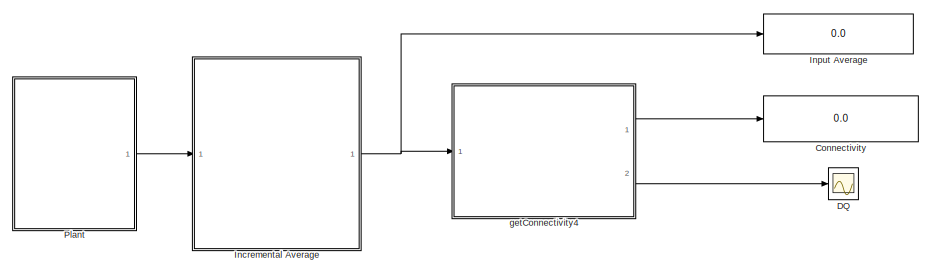
[diagram: root canvas - part 1/4, top right region]
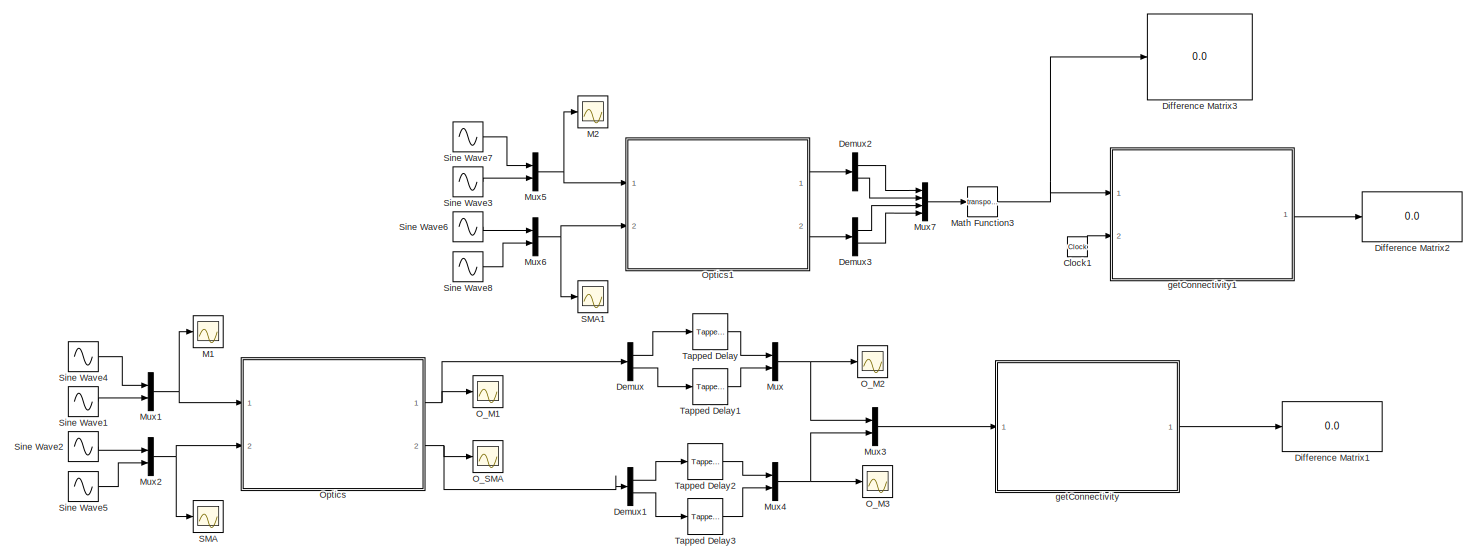
[diagram: root canvas - part 2/4, middle left region]
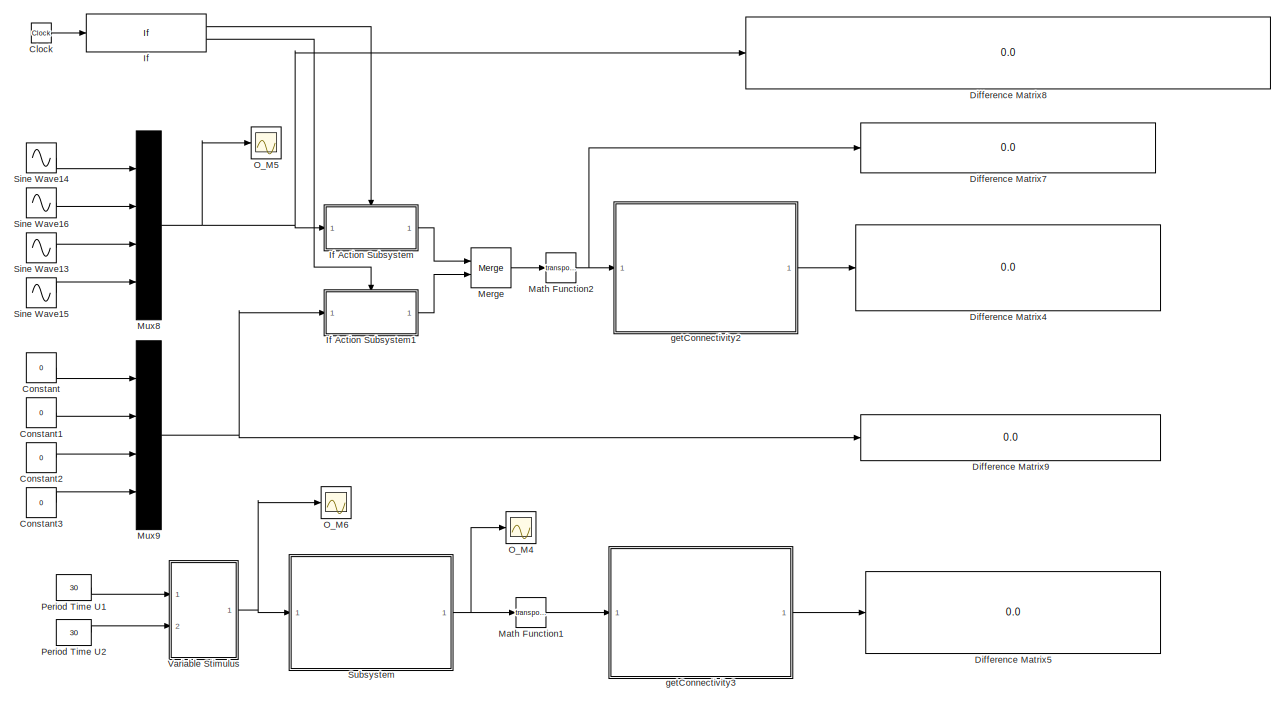
[diagram: root canvas - part 3/4, bottom left region]
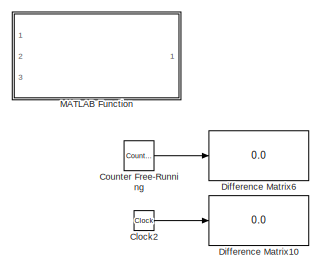
[diagram: root canvas - part 4/4, bottom center region]
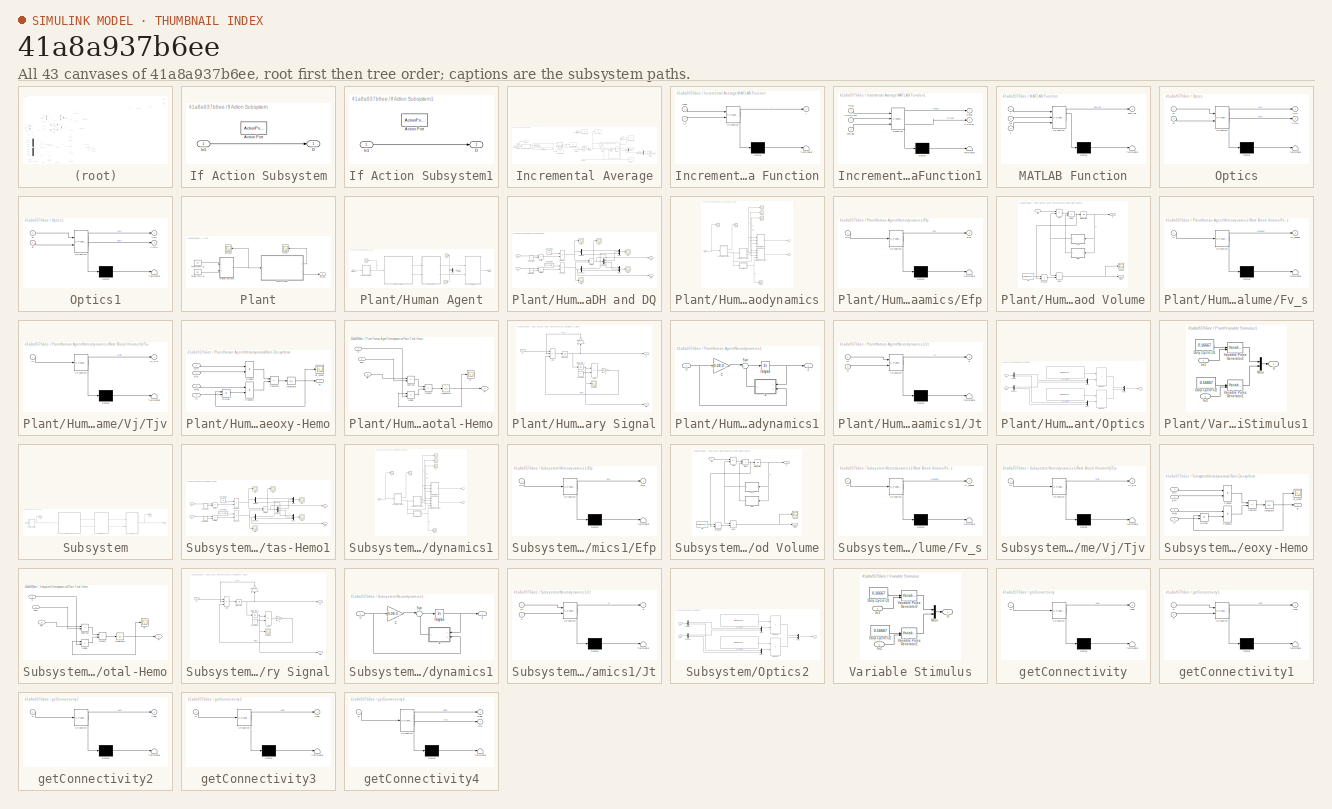
[diagram: thumbnail index - all 43 canvases of the model, root first then tree order]
MODEL slx_41a8a937b6ee
KIND model
CONFIG AbsTol = auto
CONFIG EnableMultiTasking = off
CONFIG FixedStep = 1
CONFIG MaxStep = auto
CONFIG MinStep = auto
CONFIG RelTol = 1e-3
CONFIG SampleTimeConstraint = Unconstrained
CONFIG SolverName = ode23tb
CONFIG StartTime = 0.0
CONFIG StopTime = 130
BLOCK [Clock] Clock
BLOCK [Clock] Clock1
BLOCK [Clock] Clock2
BLOCK [Display] Connectivity
  Decimation = 1
  Ports = [1]
BLOCK [Constant] Constant
  Value = 0
BLOCK [Constant] Constant1
  Value = 0
BLOCK [Constant] Constant2
  Value = 0
BLOCK [Constant] Constant3
  Value = 0
BLOCK [Reference] Counter Free-Running  REF=simulink/Sources/Counter
Free-Running
  Ports = [0, 1]
  SourceBlock = simulink/Sources/Counter\nFree-Running
  SourceProductBaseCode = SL
  SourceType = Counter Free-Running
BLOCK [Scope] DQ
  Floating = off
  NumInputPorts = 1
  Ports = [1]
  ScopeSpecificationString = Simulink.scopes.TimeScopeBlockCfg('CurrentConfiguration', extmgr.ConfigurationSet(extmgr.Configuration('Core','General UI',true,'FigureColor',[0 0 0]),extmgr.Configuration('Core','Source UI',true),extmgr.Configuration('Sources','WiredSimulink',true,'DataLoggingVariableName','ScopeData3'),extmgr.Configuration('Visuals','Time Domain',true,'SerializedDisplays',{struct('MinYLimReal','-0.00125','MaxYLi...<+2082ch>
BLOCK [Demux] Demux
  Outputs = 2
  Ports = [1, 2]
BLOCK [Demux] Demux1
  Outputs = 2
  Ports = [1, 2]
BLOCK [Demux] Demux2
  Outputs = 2
  Ports = [1, 2]
BLOCK [Demux] Demux3
  Outputs = 2
  Ports = [1, 2]
BLOCK [Display] Difference Matrix1
  Decimation = 1
  Ports = [1]
BLOCK [Display] Difference Matrix10
  Decimation = 1
  Ports = [1]
BLOCK [Display] Difference Matrix2
  Decimation = 1
  Ports = [1]
BLOCK [Display] Difference Matrix3
  Decimation = 1
  Ports = [1]
BLOCK [Display] Difference Matrix4
  Decimation = 1
  Ports = [1]
BLOCK [Display] Difference Matrix5
  Decimation = 1
  Ports = [1]
BLOCK [Display] Difference Matrix6
  Decimation = 1
  Ports = [1]
BLOCK [Display] Difference Matrix7
  Decimation = 1
  Ports = [1]
BLOCK [Display] Difference Matrix8
  Decimation = 1
  Format = long
  Ports = [1]
BLOCK [Display] Difference Matrix9
  Decimation = 1
  Ports = [1]
BLOCK [If] If
  IfExpression = u1 == 30
  Ports = [1, 2]
BLOCK [SubSystem] If Action Subsystem
  Ports = [1, 1, 0, 0, 0, 0, 0, 1]
  RequestExecContextInheritance = off
  TreatAsAtomicUnit = on
BLOCK [ActionPort] If Action Subsystem/Action Port
  ActionPortLabel = if(u1 == 30)
BLOCK [Outport] If Action Subsystem/D
BLOCK [Inport] If Action Subsystem/In1
BLOCK [SubSystem] If Action Subsystem1
  Ports = [1, 1, 0, 0, 0, 0, 0, 1]
  RequestExecContextInheritance = off
  TreatAsAtomicUnit = on
BLOCK [ActionPort] If Action Subsystem1/Action Port
  ActionPortLabel = else
BLOCK [Outport] If Action Subsystem1/D
BLOCK [Inport] If Action Subsystem1/In1
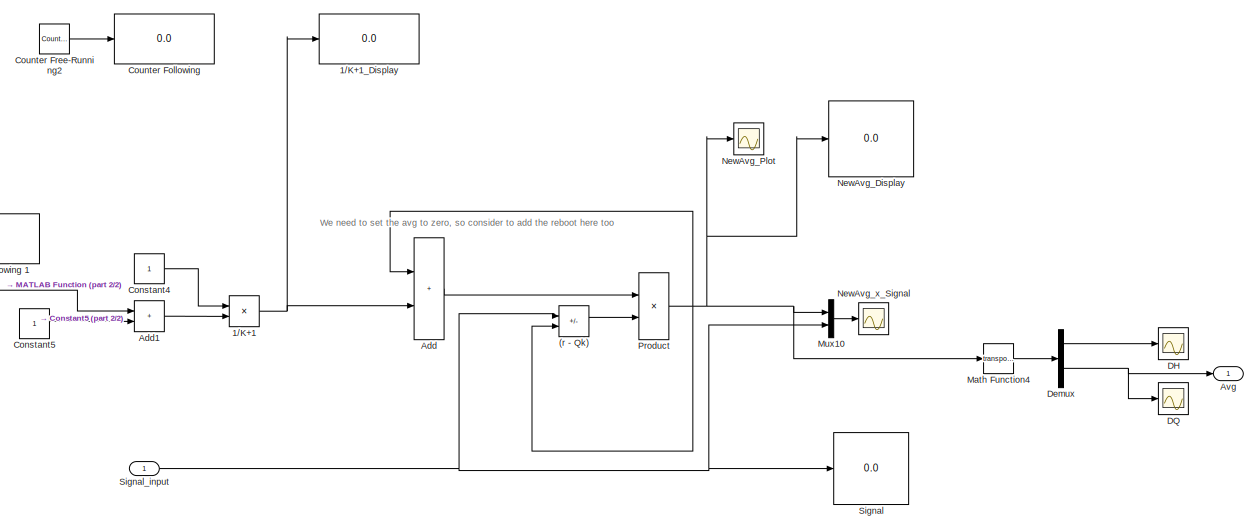
[diagram: Incremental Average - part 1/2, right side, full height]
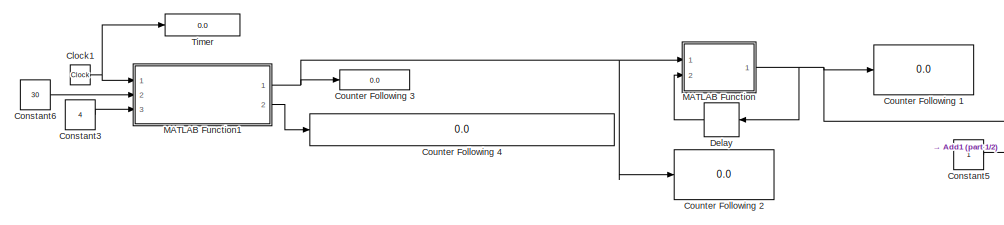
[diagram: Incremental Average - part 2/2, middle left region]
BLOCK [SubSystem] Incremental Average
  Ports = [1, 1]
  RequestExecContextInheritance = off
BLOCK [Sum] Incremental Average/(r - Qk)
  IconShape = rectangular
  Inputs = +-
  Ports = [2, 1]
BLOCK [Product] Incremental Average/1//K+1
  Inputs = */
  Ports = [2, 1]
BLOCK [Display] Incremental Average/1//K+1_Display
  Decimation = 1
  Ports = [1]
BLOCK [Sum] Incremental Average/Add
  IconShape = rectangular
  Ports = [2, 1]
BLOCK [Sum] Incremental Average/Add1
  IconShape = rectangular
  Ports = [2, 1]
BLOCK [Outport] Incremental Average/Avg
BLOCK [Clock] Incremental Average/Clock1
BLOCK [Constant] Incremental Average/Constant3
  Value = 4
BLOCK [Constant] Incremental Average/Constant4
BLOCK [Constant] Incremental Average/Constant5
BLOCK [Constant] Incremental Average/Constant6
  Value = 30
BLOCK [Display] Incremental Average/Counter Following 
  Decimation = 1
  Ports = [1]
BLOCK [Display] Incremental Average/Counter Following 1
  Decimation = 1
  Ports = [1]
BLOCK [Display] Incremental Average/Counter Following 2
  Decimation = 1
  Ports = [1]
BLOCK [Display] Incremental Average/Counter Following 3
  Decimation = 1
  Ports = [1]
BLOCK [Display] Incremental Average/Counter Following 4
  Decimation = 1
  Ports = [1]
BLOCK [Reference] Incremental Average/Counter Free-Running2  REF=simulink/Sources/Counter
Free-Running
  Ports = [0, 1]
  SourceBlock = simulink/Sources/Counter\nFree-Running
  SourceProductBaseCode = SL
  SourceType = Counter Free-Running
BLOCK [Scope] Incremental Average/DH
  Floating = off
  NumInputPorts = 1
  Ports = [1]
  ScopeSpecificationString = Simulink.scopes.TimeScopeBlockCfg('CurrentConfiguration', extmgr.ConfigurationSet(extmgr.Configuration('Core','General UI',true,'FigureColor',[0 0 0]),extmgr.Configuration('Core','Source UI',true),extmgr.Configuration('Sources','WiredSimulink',true,'DataLoggingVariableName','ScopeData7'),extmgr.Configuration('Visuals','Time Domain',true,'SerializedDisplays',{struct('MinYLimReal','-1.75363','MaxYLi...<+2059ch>
BLOCK [Scope] Incremental Average/DQ
  Floating = off
  NumInputPorts = 1
  Ports = [1]
  ScopeSpecificationString = Simulink.scopes.TimeScopeBlockCfg('CurrentConfiguration', extmgr.ConfigurationSet(extmgr.Configuration('Core','General UI',true,'FigureColor',[0 0 0]),extmgr.Configuration('Core','Source UI',true),extmgr.Configuration('Sources','WiredSimulink',true,'DataLoggingVariableName','ScopeData6'),extmgr.Configuration('Visuals','Time Domain',true,'SerializedDisplays',{struct('MinYLimReal','-0.00831','MaxYLi...<+2059ch>
BLOCK [Delay] Incremental Average/Delay
  DelayLength = 1
  InitialCondition = 0
  InputPortMap = u0
  Ports = [1, 1]
BLOCK [Demux] Incremental Average/Demux
  Outputs = 2
  Ports = [1, 2]
BLOCK [SubSystem] Incremental Average/MATLAB Function
  ErrorFcn = Stateflow.Translate.translate
  PermitHierarchicalResolution = ExplicitOnly
  Ports = [2, 1]
  RequestExecContextInheritance = off
  SFBlockType = MATLAB Function
  TreatAsAtomicUnit = on
BLOCK [Demux] Incremental Average/MATLAB Function/ Demux 
  Outputs = 1
  Ports = [1, 1]
BLOCK [S-Function] Incremental Average/MATLAB Function/ SFunction 
  EnableBusSupport = on
  FunctionName = sf_sfun
  PortCounts = [2 2]
  Ports = [2, 2]
  SFcnIsStateOwnerBlock = off
  SFunctionDeploymentMode = off
  Tag = Stateflow S-Function 17
BLOCK [Terminator] Incremental Average/MATLAB Function/ Terminator 
BLOCK [Inport] Incremental Average/MATLAB Function/reset
BLOCK [Outport] Incremental Average/MATLAB Function/y
BLOCK [Inport] Incremental Average/MATLAB Function/y_s
  Port = 2
BLOCK [SubSystem] Incremental Average/MATLAB Function1
  ErrorFcn = Stateflow.Translate.translate
  PermitHierarchicalResolution = ExplicitOnly
  Ports = [3, 2]
  RequestExecContextInheritance = off
  SFBlockType = MATLAB Function
  TreatAsAtomicUnit = on
BLOCK [Demux] Incremental Average/MATLAB Function1/ Demux 
  Outputs = 1
  Ports = [1, 1]
BLOCK [S-Function] Incremental Average/MATLAB Function1/ SFunction 
  EnableBusSupport = on
  FunctionName = sf_sfun
  PortCounts = [3 3]
  Ports = [3, 3]
  SFcnIsStateOwnerBlock = off
  SFunctionDeploymentMode = off
  Tag = Stateflow S-Function 18
BLOCK [Terminator] Incremental Average/MATLAB Function1/ Terminator 
BLOCK [Inport] Incremental Average/MATLAB Function1/Cycle_time
  Port = 2
BLOCK [Outport] Incremental Average/MATLAB Function1/PCycles
  Port = 2
BLOCK [Outport] Incremental Average/MATLAB Function1/Reset
BLOCK [Inport] Incremental Average/MATLAB Function1/Timer
BLOCK [Inport] Incremental Average/MATLAB Function1/periods
  Port = 3
BLOCK [Math] Incremental Average/Math Function4
  Operator = transpose
  Ports = [1, 1]
BLOCK [Mux] Incremental Average/Mux10
  DisplayOption = bar
  Inputs = 2
  Ports = [2, 1]
BLOCK [Display] Incremental Average/NewAvg_Display
  Decimation = 1
  Ports = [1]
BLOCK [Scope] Incremental Average/NewAvg_Plot
  Floating = off
  NumInputPorts = 1
  Ports = [1]
  ScopeSpecificationString = Simulink.scopes.TimeScopeBlockCfg('CurrentConfiguration', extmgr.ConfigurationSet(extmgr.Configuration('Core','General UI',true,'FigureColor',[0 0 0]),extmgr.Configuration('Core','Source UI',true),extmgr.Configuration('Sources','WiredSimulink',true,'DataLoggingVariableName','ScopeData3'),extmgr.Configuration('Visuals','Time Domain',true,'SerializedDisplays',{struct('MinYLimReal','-1.75915','MaxYLi...<+2137ch>
BLOCK [Scope] Incremental Average/NewAvg_x_Signal
  Floating = off
  NumInputPorts = 1
  Ports = [1]
  ScopeSpecificationString = Simulink.scopes.TimeScopeBlockCfg('CurrentConfiguration', extmgr.ConfigurationSet(extmgr.Configuration('Core','General UI',true,'FigureColor',[0 0 0]),extmgr.Configuration('Core','Source UI',true),extmgr.Configuration('Sources','WiredSimulink',true,'DataLoggingVariableName','ScopeData1'),extmgr.Configuration('Visuals','Time Domain',true,'SerializedDisplays',{struct('MinYLimReal','-3.49776','MaxYLi...<+2205ch>
BLOCK [Product] Incremental Average/Product
  Ports = [2, 1]
BLOCK [Display] Incremental Average/Signal
  Decimation = 1
  Ports = [1]
BLOCK [Inport] Incremental Average/Signal_input
BLOCK [Display] Incremental Average/Timer
  Decimation = 1
  Ports = [1]
BLOCK [Display] Input Average 
  Decimation = 1
  Ports = [1]
BLOCK [Scope] M1
  Floating = off
  NumInputPorts = 1
  Ports = [1]
  ScopeSpecificationString = Simulink.scopes.TimeScopeBlockCfg('CurrentConfiguration', extmgr.ConfigurationSet(extmgr.Configuration('Core','General UI',true,'FigureColor',[0 0 0]),extmgr.Configuration('Core','Source UI',true),extmgr.Configuration('Sources','WiredSimulink',true,'DataLoggingVariableName','ScopeData1'),extmgr.Configuration('Visuals','Time Domain',true,'SerializedDisplays',{struct('MinYLimReal','-1.49998','MaxYLi...<+1660ch>
BLOCK [Scope] M2
  Floating = off
  NumInputPorts = 1
  Ports = [1]
  ScopeSpecificationString = Simulink.scopes.TimeScopeBlockCfg('CurrentConfiguration', extmgr.ConfigurationSet(extmgr.Configuration('Core','General UI',true,'FigureColor',[0 0 0]),extmgr.Configuration('Core','Source UI',true),extmgr.Configuration('Sources','WiredSimulink',true,'DataLoggingVariableName','ScopeData1'),extmgr.Configuration('Visuals','Time Domain',true,'SerializedDisplays',{struct('MinYLimReal','-1.49998','MaxYLi...<+1660ch>
BLOCK [SubSystem] MATLAB Function
  ErrorFcn = Stateflow.Translate.translate
  PermitHierarchicalResolution = ExplicitOnly
  Ports = [3, 1]
  RequestExecContextInheritance = off
  SFBlockType = MATLAB Function
  TreatAsAtomicUnit = on
BLOCK [Demux] MATLAB Function/ Demux 
  Outputs = 1
  Ports = [1, 1]
BLOCK [S-Function] MATLAB Function/ SFunction 
  EnableBusSupport = on
  FunctionName = sf_sfun
  PortCounts = [3 2]
  Ports = [3, 2]
  SFcnIsStateOwnerBlock = off
  SFunctionDeploymentMode = off
  Tag = Stateflow S-Function 7
BLOCK [Terminator] MATLAB Function/ Terminator 
BLOCK [Inport] MATLAB Function/Qk
  Port = 2
BLOCK [Inport] MATLAB Function/k
  Port = 3
BLOCK [Outport] MATLAB Function/newAvg
BLOCK [Inport] MATLAB Function/r
BLOCK [Math] Math Function1
  Operator = transpose
  Ports = [1, 1]
BLOCK [Math] Math Function2
  Operator = transpose
  Ports = [1, 1]
BLOCK [Math] Math Function3
  Operator = transpose
  Ports = [1, 1]
BLOCK [Merge] Merge
  InitialOutput = [0 0 0 0]
  Ports = [2, 1]
BLOCK [Mux] Mux
  DisplayOption = bar
  Inputs = 2
  Ports = [2, 1]
BLOCK [Mux] Mux1
  DisplayOption = bar
  Inputs = 2
  Ports = [2, 1]
BLOCK [Mux] Mux2
  DisplayOption = bar
  Inputs = 2
  Ports = [2, 1]
BLOCK [Mux] Mux3
  DisplayOption = bar
  Inputs = 2
  Ports = [2, 1]
BLOCK [Mux] Mux4
  DisplayOption = bar
  Inputs = 2
  Ports = [2, 1]
BLOCK [Mux] Mux5
  DisplayOption = bar
  Inputs = 2
  Ports = [2, 1]
BLOCK [Mux] Mux6
  DisplayOption = bar
  Inputs = 2
  Ports = [2, 1]
BLOCK [Mux] Mux7
  DisplayOption = bar
  Ports = [4, 1]
BLOCK [Mux] Mux8
  DisplayOption = bar
  Ports = [4, 1]
BLOCK [Mux] Mux9
  DisplayOption = bar
  Ports = [4, 1]
BLOCK [Scope] O_M1
  Floating = off
  NumInputPorts = 1
  Ports = [1]
  ScopeSpecificationString = Simulink.scopes.TimeScopeBlockCfg('CurrentConfiguration', extmgr.ConfigurationSet(extmgr.Configuration('Core','General UI',true,'FigureColor',[0 0 0]),extmgr.Configuration('Core','Source UI',true),extmgr.Configuration('Sources','WiredSimulink',true,'DataLoggingVariableName','ScopeData2'),extmgr.Configuration('Visuals','Time Domain',true,'SerializedDisplays',{struct('MinYLimReal','-0.12084','MaxYLi...<+1663ch>
BLOCK [Scope] O_M2
  Floating = off
  NumInputPorts = 1
  Ports = [1]
  ScopeSpecificationString = Simulink.scopes.TimeScopeBlockCfg('CurrentConfiguration', extmgr.ConfigurationSet(extmgr.Configuration('Core','General UI',true,'FigureColor',[0 0 0]),extmgr.Configuration('Core','Source UI',true),extmgr.Configuration('Sources','WiredSimulink',true,'DataLoggingVariableName','ScopeData4'),extmgr.Configuration('Visuals','Time Domain',true,'SerializedDisplays',{struct('MinYLimReal','-0.12102','MaxYLi...<+2726ch>
BLOCK [Scope] O_M3
  Floating = off
  NumInputPorts = 1
  Ports = [1]
  ScopeSpecificationString = Simulink.scopes.TimeScopeBlockCfg('CurrentConfiguration', extmgr.ConfigurationSet(extmgr.Configuration('Core','General UI',true,'FigureColor',[0 0 0]),extmgr.Configuration('Core','Source UI',true),extmgr.Configuration('Sources','WiredSimulink',true,'DataLoggingVariableName','ScopeData1'),extmgr.Configuration('Visuals','Time Domain',true,'SerializedDisplays',{struct('MinYLimReal','-0.13421','MaxYLi...<+2756ch>
BLOCK [Scope] O_M4
  Floating = off
  NumInputPorts = 1
  Ports = [1]
  ScopeSpecificationString = Simulink.scopes.TimeScopeBlockCfg('CurrentConfiguration', extmgr.ConfigurationSet(extmgr.Configuration('Core','General UI',true,'FigureColor',[0 0 0]),extmgr.Configuration('Core','Source UI',true),extmgr.Configuration('Sources','WiredSimulink',true,'DataLoggingVariableName','ScopeData1'),extmgr.Configuration('Visuals','Time Domain',true,'SerializedDisplays',{struct('MinYLimReal','-0.00232','MaxYLi...<+1690ch>
BLOCK [Scope] O_M5
  Floating = off
  NumInputPorts = 1
  Ports = [1]
  ScopeSpecificationString = Simulink.scopes.TimeScopeBlockCfg('CurrentConfiguration', extmgr.ConfigurationSet(extmgr.Configuration('Core','General UI',true,'FigureColor',[0 0 0]),extmgr.Configuration('Core','Source UI',true),extmgr.Configuration('Sources','WiredSimulink',true,'DataLoggingVariableName','ScopeData2'),extmgr.Configuration('Visuals','Time Domain',true,'SerializedDisplays',{struct('MinYLimReal','-1.49476','MaxYLi...<+1689ch>
BLOCK [Scope] O_M6
  Floating = off
  NumInputPorts = 1
  Ports = [1]
  ScopeSpecificationString = Simulink.scopes.TimeScopeBlockCfg('CurrentConfiguration', extmgr.ConfigurationSet(extmgr.Configuration('Core','General UI',true,'FigureColor',[0 0 0]),extmgr.Configuration('Core','Source UI',true),extmgr.Configuration('Sources','WiredSimulink',true,'DataLoggingVariableName','ScopeData4'),extmgr.Configuration('Visuals','Time Domain',true,'SerializedDisplays',{struct('MinYLimReal','-0.125','MaxYLimR...<+1666ch>
BLOCK [Scope] O_SMA
  Floating = off
  NumInputPorts = 1
  Ports = [1]
  ScopeSpecificationString = Simulink.scopes.TimeScopeBlockCfg('CurrentConfiguration', extmgr.ConfigurationSet(extmgr.Configuration('Core','General UI',true,'FigureColor',[0 0 0]),extmgr.Configuration('Core','Source UI',true),extmgr.Configuration('Sources','WiredSimulink',true,'DataLoggingVariableName','ScopeData3'),extmgr.Configuration('Visuals','Time Domain',true,'SerializedDisplays',{struct('MinYLimReal','-0.00013','MaxYLi...<+1662ch>
BLOCK [SubSystem] Optics
  ErrorFcn = Stateflow.Translate.translate
  PermitHierarchicalResolution = ExplicitOnly
  Ports = [2, 2]
  RequestExecContextInheritance = off
  SFBlockType = MATLAB Function
  TreatAsAtomicUnit = on
BLOCK [Demux] Optics/ Demux 
  Outputs = 1
  Ports = [1, 1]
BLOCK [S-Function] Optics/ SFunction 
  EnableBusSupport = on
  FunctionName = sf_sfun
  PortCounts = [2 3]
  Ports = [2, 3]
  SFcnIsStateOwnerBlock = off
  SFunctionDeploymentMode = off
  Tag = Stateflow S-Function 3
BLOCK [Terminator] Optics/ Terminator 
BLOCK [Outport] Optics/YM1
BLOCK [Outport] Optics/YSMA
  Port = 2
BLOCK [Inport] Optics/pj
BLOCK [Inport] Optics/qj
  Port = 2
BLOCK [SubSystem] Optics1
  ErrorFcn = Stateflow.Translate.translate
  PermitHierarchicalResolution = ExplicitOnly
  Ports = [2, 2]
  RequestExecContextInheritance = off
  SFBlockType = MATLAB Function
  TreatAsAtomicUnit = on
BLOCK [Demux] Optics1/ Demux 
  Outputs = 1
  Ports = [1, 1]
BLOCK [S-Function] Optics1/ SFunction 
  EnableBusSupport = on
  FunctionName = sf_sfun
  PortCounts = [2 3]
  Ports = [2, 3]
  SFcnIsStateOwnerBlock = off
  SFunctionDeploymentMode = off
  Tag = Stateflow S-Function 2
BLOCK [Terminator] Optics1/ Terminator 
BLOCK [Outport] Optics1/YM1
BLOCK [Outport] Optics1/YSMA
  Port = 2
BLOCK [Inport] Optics1/pj
BLOCK [Inport] Optics1/qj
  Port = 2
BLOCK [Constant] Period Time U1
  Value = 30
BLOCK [Constant] Period Time U2
  Value = 30
BLOCK [SubSystem] Plant
  Ports = [0, 1]
  RequestExecContextInheritance = off
BLOCK [Outport] Plant/DH-DQ
BLOCK [SubSystem] Plant/Human Agent
  Ports = [1, 2]
  RequestExecContextInheritance = off
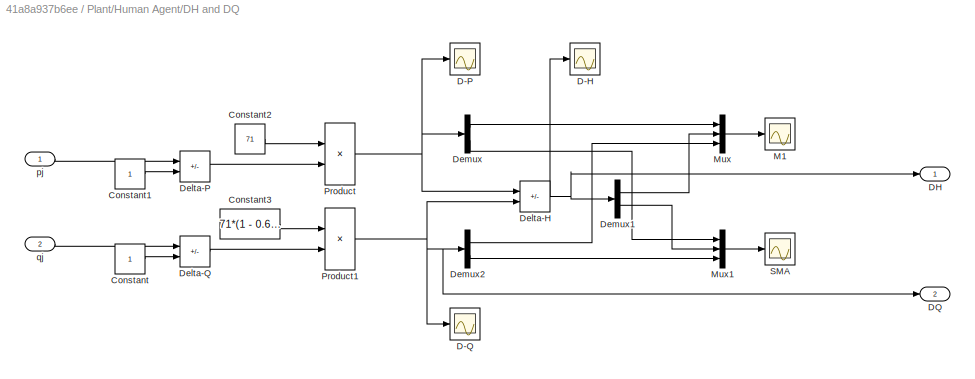
BLOCK [SubSystem] Plant/Human Agent/DH and DQ
  Ports = [2, 2]
  RequestExecContextInheritance = off
BLOCK [Constant] Plant/Human Agent/DH and DQ/Constant
BLOCK [Constant] Plant/Human Agent/DH and DQ/Constant1
BLOCK [Constant] Plant/Human Agent/DH and DQ/Constant2
  Value = 71
BLOCK [Constant] Plant/Human Agent/DH and DQ/Constant3
  Value = 71*(1 - 0.65)
BLOCK [Scope] Plant/Human Agent/DH and DQ/D-H
  Floating = off
  NumInputPorts = 1
  Ports = [1]
  ScopeSpecificationString = Simulink.scopes.TimeScopeBlockCfg('CurrentConfiguration', extmgr.ConfigurationSet(extmgr.Configuration('Core','General UI',true),extmgr.Configuration('Core','Source UI',true),extmgr.Configuration('Sources','WiredSimulink',true,'DataLoggingVariableName','ScopeData7'),extmgr.Configuration('Visuals','Time Domain',true,'SerializedDisplays',{struct('MinYLimReal','-2.91276','MaxYLimReal','17.16126','YLa...<+1449ch>
BLOCK [Scope] Plant/Human Agent/DH and DQ/D-P
  Floating = off
  NumInputPorts = 1
  Ports = [1]
  ScopeSpecificationString = Simulink.scopes.TimeScopeBlockCfg('CurrentConfiguration', extmgr.ConfigurationSet(extmgr.Configuration('Core','General UI',true),extmgr.Configuration('Core','Source UI',true),extmgr.Configuration('Sources','WiredSimulink',true,'DataLoggingVariableName','ScopeData5'),extmgr.Configuration('Visuals','Time Domain',true,'SerializedDisplays',{struct('MinYLimReal','-2.54989','MaxYLimReal','15.75385','YLa...<+1449ch>
BLOCK [Scope] Plant/Human Agent/DH and DQ/D-Q
  Floating = off
  NumInputPorts = 1
  Ports = [1]
  ScopeSpecificationString = Simulink.scopes.TimeScopeBlockCfg('CurrentConfiguration', extmgr.ConfigurationSet(extmgr.Configuration('Core','General UI',true),extmgr.Configuration('Core','Source UI',true),extmgr.Configuration('Sources','WiredSimulink',true,'DataLoggingVariableName','ScopeData6'),extmgr.Configuration('Visuals','Time Domain',true,'SerializedDisplays',{struct('MinYLimReal','-1.63975','MaxYLimReal','0.38869','YLab...<+1447ch>
BLOCK [Outport] Plant/Human Agent/DH and DQ/DH
BLOCK [Outport] Plant/Human Agent/DH and DQ/DQ
  Port = 2
BLOCK [Sum] Plant/Human Agent/DH and DQ/Delta-H
  IconShape = rectangular
  Inputs = +-
  Ports = [2, 1]
BLOCK [Sum] Plant/Human Agent/DH and DQ/Delta-P
  IconShape = rectangular
  Inputs = +-
  Ports = [2, 1]
BLOCK [Sum] Plant/Human Agent/DH and DQ/Delta-Q
  IconShape = rectangular
  Inputs = +-
  Ports = [2, 1]
BLOCK [Demux] Plant/Human Agent/DH and DQ/Demux
  Outputs = 2
  Ports = [1, 2]
BLOCK [Demux] Plant/Human Agent/DH and DQ/Demux1
  Outputs = 2
  Ports = [1, 2]
BLOCK [Demux] Plant/Human Agent/DH and DQ/Demux2
  Outputs = 2
  Ports = [1, 2]
BLOCK [Scope] Plant/Human Agent/DH and DQ/M1
  Floating = off
  NumInputPorts = 1
  Ports = [1]
  ScopeSpecificationString = Simulink.scopes.TimeScopeBlockCfg('CurrentConfiguration', extmgr.ConfigurationSet(extmgr.Configuration('Core','General UI',true),extmgr.Configuration('Core','Source UI',true),extmgr.Configuration('Sources','WiredSimulink',true,'DataLoggingVariableName','ScopeData8'),extmgr.Configuration('Visuals','Time Domain',true,'SerializedDisplays',{struct('MinYLimReal','-2.54514','MaxYLimReal','8.43627','YLab...<+1735ch>
BLOCK [Mux] Plant/Human Agent/DH and DQ/Mux
  DisplayOption = bar
  Inputs = 3
  Ports = [3, 1]
BLOCK [Mux] Plant/Human Agent/DH and DQ/Mux1
  DisplayOption = bar
  Inputs = 3
  Ports = [3, 1]
BLOCK [Product] Plant/Human Agent/DH and DQ/Product
  Ports = [2, 1]
BLOCK [Product] Plant/Human Agent/DH and DQ/Product1
  Ports = [2, 1]
BLOCK [Scope] Plant/Human Agent/DH and DQ/SMA
  Floating = off
  NumInputPorts = 1
  Ports = [1]
  ScopeSpecificationString = Simulink.scopes.TimeScopeBlockCfg('CurrentConfiguration', extmgr.ConfigurationSet(extmgr.Configuration('Core','General UI',true),extmgr.Configuration('Core','Source UI',true),extmgr.Configuration('Sources','WiredSimulink',true,'DataLoggingVariableName','ScopeData9'),extmgr.Configuration('Visuals','Time Domain',true,'SerializedDisplays',{struct('MinYLimReal','-3.33791','MaxYLimReal','17.25675','YLa...<+1774ch>
BLOCK [Inport] Plant/Human Agent/DH and DQ/pj
BLOCK [Inport] Plant/Human Agent/DH and DQ/qj
  Port = 2
BLOCK [Outport] Plant/Human Agent/DH-DQ
  Port = 2
BLOCK [SubSystem] Plant/Human Agent/Hemodynamics
  Ports = [1, 2]
  RequestExecContextInheritance = off
BLOCK [SubSystem] Plant/Human Agent/Hemodynamics/Efp
  ErrorFcn = Stateflow.Translate.translate
  PermitHierarchicalResolution = ExplicitOnly
  Ports = [1, 1]
  RequestExecContextInheritance = off
  SFBlockType = MATLAB Function
  TreatAsAtomicUnit = on
BLOCK [Demux] Plant/Human Agent/Hemodynamics/Efp/ Demux 
  Outputs = 1
  Ports = [1, 1]
BLOCK [S-Function] Plant/Human Agent/Hemodynamics/Efp/ SFunction 
  EnableBusSupport = on
  FunctionName = sf_sfun
  PortCounts = [1 2]
  Ports = [1, 2]
  SFcnIsStateOwnerBlock = off
  SFunctionDeploymentMode = off
  Tag = Stateflow S-Function 9
BLOCK [Terminator] Plant/Human Agent/Hemodynamics/Efp/ Terminator 
BLOCK [Outport] Plant/Human Agent/Hemodynamics/Efp/Efp
BLOCK [Inport] Plant/Human Agent/Hemodynamics/Efp/fjin
BLOCK [Scope] Plant/Human Agent/Hemodynamics/Efp_1
  Floating = off
  NumInputPorts = 1
  Ports = [1]
  ScopeSpecificationString = Simulink.scopes.TimeScopeBlockCfg('CurrentConfiguration', extmgr.ConfigurationSet(extmgr.Configuration('Core','General UI',true),extmgr.Configuration('Core','Source UI',true),extmgr.Configuration('Sources','WiredSimulink',true,'DataLoggingVariableName','ScopeData7'),extmgr.Configuration('Visuals','Time Domain',true,'SerializedDisplays',{struct('MinYLimReal','0.87922','MaxYLimReal','1.03497','YLabe...<+1400ch>
BLOCK [Scope] Plant/Human Agent/Hemodynamics/Fjin_1
  Floating = off
  NumInputPorts = 1
  Ports = [1]
  ScopeSpecificationString = Simulink.scopes.TimeScopeBlockCfg('CurrentConfiguration', extmgr.ConfigurationSet(extmgr.Configuration('Core','General UI',true),extmgr.Configuration('Core','Source UI',true),extmgr.Configuration('Sources','WiredSimulink',true,'DataLoggingVariableName','ScopeData6'),extmgr.Configuration('Visuals','Time Domain',true,'SerializedDisplays',{struct('MinYLimReal','0.95597','MaxYLimReal','1.16405','YLabe...<+1403ch>
BLOCK [Scope] Plant/Human Agent/Hemodynamics/Fjout
  Floating = off
  NumInputPorts = 1
  Ports = [1]
  ScopeSpecificationString = Simulink.scopes.TimeScopeBlockCfg('CurrentConfiguration', extmgr.ConfigurationSet(extmgr.Configuration('Core','General UI',true),extmgr.Configuration('Core','Source UI',true),extmgr.Configuration('Sources','WiredSimulink',true,'DataLoggingVariableName','ScopeData5'),extmgr.Configuration('Visuals','Time Domain',true,'SerializedDisplays',{struct('MinYLimReal','0.96309','MaxYLimReal','1.1501','YLabel...<+1400ch>
BLOCK [Outport] Plant/Human Agent/Hemodynamics/Pj
BLOCK [SubSystem] Plant/Human Agent/Hemodynamics/Rate Blood Volume
  Ports = [1, 2]
  RequestExecContextInheritance = off
BLOCK [Sum] Plant/Human Agent/Hemodynamics/Rate Blood Volume/Add
  IconShape = rectangular
  Inputs = +-
  Ports = [2, 1]
BLOCK [Sum] Plant/Human Agent/Hemodynamics/Rate Blood Volume/Add1
  IconShape = rectangular
  Ports = [2, 1]
BLOCK [Product] Plant/Human Agent/Hemodynamics/Rate Blood Volume/Divide
  Inputs = */
  Ports = [2, 1]
BLOCK [Inport] Plant/Human Agent/Hemodynamics/Rate Blood Volume/Fjin
BLOCK [Outport] Plant/Human Agent/Hemodynamics/Rate Blood Volume/Fjout
  Port = 2
BLOCK [SubSystem] Plant/Human Agent/Hemodynamics/Rate Blood Volume/Fv_s
  ErrorFcn = Stateflow.Translate.translate
  PermitHierarchicalResolution = ExplicitOnly
  Ports = [1, 1]
  RequestExecContextInheritance = off
  SFBlockType = MATLAB Function
  TreatAsAtomicUnit = on
BLOCK [Demux] Plant/Human Agent/Hemodynamics/Rate Blood Volume/Fv_s/ Demux 
  Outputs = 1
  Ports = [1, 1]
BLOCK [S-Function] Plant/Human Agent/Hemodynamics/Rate Blood Volume/Fv_s/ SFunction 
  EnableBusSupport = on
  FunctionName = sf_sfun
  PortCounts = [1 2]
  Ports = [1, 2]
  SFcnIsStateOwnerBlock = off
  SFunctionDeploymentMode = off
  Tag = Stateflow S-Function 13
BLOCK [Terminator] Plant/Human Agent/Hemodynamics/Rate Blood Volume/Fv_s/ Terminator 
BLOCK [Inport] Plant/Human Agent/Hemodynamics/Rate Blood Volume/Fv_s/Vj
BLOCK [Outport] Plant/Human Agent/Hemodynamics/Rate Blood Volume/Fv_s/Vj_expphi
BLOCK [Integrator] Plant/Human Agent/Hemodynamics/Rate Blood Volume/Integrator
  InitialCondition = exp([0;0])
  Ports = [1, 1]
BLOCK [Product] Plant/Human Agent/Hemodynamics/Rate Blood Volume/Product
  Ports = [2, 1]
BLOCK [Scope] Plant/Human Agent/Hemodynamics/Rate Blood Volume/Scope
  Floating = off
  NumInputPorts = 1
  Ports = [1]
  ScopeSpecificationString = Simulink.scopes.TimeScopeBlockCfg('CurrentConfiguration', extmgr.ConfigurationSet(extmgr.Configuration('Core','General UI',true),extmgr.Configuration('Core','Source UI',true),extmgr.Configuration('Sources','WiredSimulink',true,'DataLoggingVariableName','ScopeData2'),extmgr.Configuration('Visuals','Time Domain',true,'SerializedDisplays',{struct('MinYLimReal','0.96417','MaxYLimReal','1.14994','YLabe...<+1372ch>
BLOCK [Constant] Plant/Human Agent/Hemodynamics/Rate Blood Volume/Tjv
  Value = 2*exp([0;1])
BLOCK [Outport] Plant/Human Agent/Hemodynamics/Rate Blood Volume/Vj
BLOCK [SubSystem] Plant/Human Agent/Hemodynamics/Rate Blood Volume/Vj//Tjv
  ErrorFcn = Stateflow.Translate.translate
  PermitHierarchicalResolution = ExplicitOnly
  Ports = [1, 1]
  RequestExecContextInheritance = off
  SFBlockType = MATLAB Function
  TreatAsAtomicUnit = on
BLOCK [Demux] Plant/Human Agent/Hemodynamics/Rate Blood Volume/Vj//Tjv/ Demux 
  Outputs = 1
  Ports = [1, 1]
BLOCK [S-Function] Plant/Human Agent/Hemodynamics/Rate Blood Volume/Vj//Tjv/ SFunction 
  EnableBusSupport = on
  FunctionName = sf_sfun
  PortCounts = [1 2]
  Ports = [1, 2]
  SFcnIsStateOwnerBlock = off
  SFunctionDeploymentMode = off
  Tag = Stateflow S-Function 14
BLOCK [Terminator] Plant/Human Agent/Hemodynamics/Rate Blood Volume/Vj//Tjv/ Terminator 
BLOCK [Inport] Plant/Human Agent/Hemodynamics/Rate Blood Volume/Vj//Tjv/Vj
BLOCK [Outport] Plant/Human Agent/Hemodynamics/Rate Blood Volume/Vj//Tjv/Vj_Tjv
BLOCK [SubSystem] Plant/Human Agent/Hemodynamics/Rate-Deoxy-Hemo
  Ports = [4, 1]
  RequestExecContextInheritance = off
BLOCK [Product] Plant/Human Agent/Hemodynamics/Rate-Deoxy-Hemo/Divide
  Inputs = */
  Ports = [2, 1]
BLOCK [Inport] Plant/Human Agent/Hemodynamics/Rate-Deoxy-Hemo/Efp
  Port = 4
BLOCK [Inport] Plant/Human Agent/Hemodynamics/Rate-Deoxy-Hemo/Fjin
BLOCK [Inport] Plant/Human Agent/Hemodynamics/Rate-Deoxy-Hemo/Fjout
  Port = 3
BLOCK [Integrator] Plant/Human Agent/Hemodynamics/Rate-Deoxy-Hemo/Integrator
  InitialCondition = exp([0;0])
  Ports = [1, 1]
BLOCK [Product] Plant/Human Agent/Hemodynamics/Rate-Deoxy-Hemo/Product
  Ports = [2, 1]
BLOCK [Product] Plant/Human Agent/Hemodynamics/Rate-Deoxy-Hemo/Product1
  Ports = [2, 1]
BLOCK [Sum] Plant/Human Agent/Hemodynamics/Rate-Deoxy-Hemo/Subtract
  IconShape = rectangular
  Inputs = +-
  Ports = [2, 1]
BLOCK [Inport] Plant/Human Agent/Hemodynamics/Rate-Deoxy-Hemo/Vj
  Port = 2
BLOCK [Outport] Plant/Human Agent/Hemodynamics/Rate-Deoxy-Hemo/qj
BLOCK [Scope] Plant/Human Agent/Hemodynamics/Rate-Deoxy-Hemo/qj_scope
  Floating = off
  NumInputPorts = 1
  Ports = [1]
  ScopeSpecificationString = Simulink.scopes.TimeScopeBlockCfg('CurrentConfiguration', extmgr.ConfigurationSet(extmgr.Configuration('Core','General UI',true),extmgr.Configuration('Core','Source UI',true),extmgr.Configuration('Sources','WiredSimulink',true,'DataLoggingVariableName','ScopeData1'),extmgr.Configuration('Visuals','Time Domain',true,'SerializedDisplays',{struct('MinYLimReal','0.9335','MaxYLimReal','1.01624','YLabel...<+1411ch>
BLOCK [SubSystem] Plant/Human Agent/Hemodynamics/Rate-Total-Hemo
  Ports = [3, 1]
  RequestExecContextInheritance = off
BLOCK [Product] Plant/Human Agent/Hemodynamics/Rate-Total-Hemo/Divide
  Inputs = */
  Ports = [2, 1]
BLOCK [Inport] Plant/Human Agent/Hemodynamics/Rate-Total-Hemo/Fjin
  Port = 3
BLOCK [Inport] Plant/Human Agent/Hemodynamics/Rate-Total-Hemo/Fjout
  Port = 2
BLOCK [Integrator] Plant/Human Agent/Hemodynamics/Rate-Total-Hemo/Integrator
  InitialCondition = exp([0;0])
  Ports = [1, 1]
BLOCK [Outport] Plant/Human Agent/Hemodynamics/Rate-Total-Hemo/Pj
BLOCK [Product] Plant/Human Agent/Hemodynamics/Rate-Total-Hemo/Product
  Ports = [2, 1]
BLOCK [Sum] Plant/Human Agent/Hemodynamics/Rate-Total-Hemo/Subtract
  IconShape = rectangular
  Inputs = +-
  Ports = [2, 1]
BLOCK [Inport] Plant/Human Agent/Hemodynamics/Rate-Total-Hemo/Vj
BLOCK [Scope] Plant/Human Agent/Hemodynamics/Rate-Total-Hemo/pj
  Floating = off
  NumInputPorts = 1
  Ports = [1]
  ScopeSpecificationString = Simulink.scopes.TimeScopeBlockCfg('CurrentConfiguration', extmgr.ConfigurationSet(extmgr.Configuration('Core','General UI',true),extmgr.Configuration('Core','Source UI',true),extmgr.Configuration('Sources','WiredSimulink',true,'DataLoggingVariableName','ScopeData2'),extmgr.Configuration('Visuals','Time Domain',true,'SerializedDisplays',{struct('MinYLimReal','0.96327','MaxYLimReal','1.22259','YLabe...<+1415ch>
BLOCK [Scope] Plant/Human Agent/Hemodynamics/Sj
  Floating = off
  NumInputPorts = 1
  Ports = [1]
  ScopeSpecificationString = Simulink.scopes.TimeScopeBlockCfg('CurrentConfiguration', extmgr.ConfigurationSet(extmgr.Configuration('Core','General UI',true),extmgr.Configuration('Core','Source UI',true),extmgr.Configuration('Sources','WiredSimulink',true,'DataLoggingVariableName','ScopeData1'),extmgr.Configuration('Visuals','Time Domain',true,'SerializedDisplays',{struct('MinYLimReal','-0.0545','MaxYLimReal','0.05017','YLabe...<+1435ch>
BLOCK [SubSystem] Plant/Human Agent/Hemodynamics/Vasodilatory Signal
  Ports = [1, 2]
  RequestExecContextInheritance = off
BLOCK [Sum] Plant/Human Agent/Hemodynamics/Vasodilatory Signal/Add
  IconShape = rectangular
  Inputs = +--
  Ports = [3, 1]
BLOCK [Sum] Plant/Human Agent/Hemodynamics/Vasodilatory Signal/Add1
  IconShape = rectangular
  Inputs = +-
  Ports = [2, 1]
BLOCK [Constant] Plant/Human Agent/Hemodynamics/Vasodilatory Signal/Constant1
BLOCK [Outport] Plant/Human Agent/Hemodynamics/Vasodilatory Signal/Fjin
  Port = 2
BLOCK [Integrator] Plant/Human Agent/Hemodynamics/Vasodilatory Signal/Integrator
  Ports = [1, 1]
BLOCK [Integrator] Plant/Human Agent/Hemodynamics/Vasodilatory Signal/Integrator1
  InitialCondition = exp([0;0])
  Ports = [1, 1]
BLOCK [Gain] Plant/Human Agent/Hemodynamics/Vasodilatory Signal/K
  Gain = 0.64*exp([0;0.05])
  NameLocation = right
BLOCK [Scope] Plant/Human Agent/Hemodynamics/Vasodilatory Signal/Scope1
  Floating = off
  NumInputPorts = 1
  Ports = [1]
  ScopeSpecificationString = Simulink.scopes.TimeScopeBlockCfg('CurrentConfiguration', extmgr.ConfigurationSet(extmgr.Configuration('Core','General UI',true),extmgr.Configuration('Core','Source UI',true),extmgr.Configuration('Sources','WiredSimulink',true,'DataLoggingVariableName','ScopeData1'),extmgr.Configuration('Visuals','Time Domain',true,'SerializedDisplays',{struct('MinYLimReal','-0.02898','MaxYLimReal','0.08445','YLab...<+1370ch>
BLOCK [Outport] Plant/Human Agent/Hemodynamics/Vasodilatory Signal/Sj
BLOCK [Gain] Plant/Human Agent/Hemodynamics/Vasodilatory Signal/Yj
  Gain = 0.32*exp([0;0.05])
BLOCK [Inport] Plant/Human Agent/Hemodynamics/Vasodilatory Signal/Zj
BLOCK [Scope] Plant/Human Agent/Hemodynamics/Vj
  Floating = off
  NumInputPorts = 1
  Ports = [1]
  ScopeSpecificationString = Simulink.scopes.TimeScopeBlockCfg('CurrentConfiguration', extmgr.ConfigurationSet(extmgr.Configuration('Core','General UI',true),extmgr.Configuration('Core','Source UI',true),extmgr.Configuration('Sources','WiredSimulink',true,'DataLoggingVariableName','ScopeData4'),extmgr.Configuration('Visuals','Time Domain',true,'SerializedDisplays',{struct('MinYLimReal','0.98899','MaxYLimReal','1.04469','YLabe...<+1398ch>
BLOCK [Scope] Plant/Human Agent/Hemodynamics/Z
  Floating = off
  NumInputPorts = 1
  Ports = [1]
  ScopeSpecificationString = Simulink.scopes.TimeScopeBlockCfg('CurrentConfiguration', extmgr.ConfigurationSet(extmgr.Configuration('Core','General UI',true),extmgr.Configuration('Core','Source UI',true),extmgr.Configuration('Sources','WiredSimulink',true),extmgr.Configuration('Visuals','Time Domain',true,'SerializedDisplays',{struct('MinYLimReal','-0.01031','MaxYLimReal','0.05684','YLabelReal','','MinYLimMag','0.00000','MaxY...<+1359ch>
BLOCK [Inport] Plant/Human Agent/Hemodynamics/Zj
BLOCK [Outport] Plant/Human Agent/Hemodynamics/qj
  Port = 2
BLOCK [Mux] Plant/Human Agent/Mux
  DisplayOption = bar
  Inputs = 2
  Ports = [2, 1]
BLOCK [SubSystem] Plant/Human Agent/Neurodynamics1
  Ports = [1, 1]
  RequestExecContextInheritance = off
BLOCK [Gain] Plant/Human Agent/Neurodynamics1/C
  Gain = [0.08 0;0.06 0]
  Multiplication = Matrix(K*u)
BLOCK [Integrator] Plant/Human Agent/Neurodynamics1/Integrator
  Ports = [1, 1]
BLOCK [SubSystem] Plant/Human Agent/Neurodynamics1/Jt
  ErrorFcn = Stateflow.Translate.translate
  PermitHierarchicalResolution = ExplicitOnly
  Ports = [2, 1]
  RequestExecContextInheritance = off
  SFBlockType = MATLAB Function
  TreatAsAtomicUnit = on
BLOCK [Demux] Plant/Human Agent/Neurodynamics1/Jt/ Demux 
  Outputs = 1
  Ports = [1, 1]
BLOCK [S-Function] Plant/Human Agent/Neurodynamics1/Jt/ SFunction 
  EnableBusSupport = on
  FunctionName = sf_sfun
  PortCounts = [2 2]
  Ports = [2, 2]
  SFcnIsStateOwnerBlock = off
  SFunctionDeploymentMode = off
  Tag = Stateflow S-Function 15
BLOCK [Terminator] Plant/Human Agent/Neurodynamics1/Jt/ Terminator 
BLOCK [Outport] Plant/Human Agent/Neurodynamics1/Jt/Jt
BLOCK [Inport] Plant/Human Agent/Neurodynamics1/Jt/U
  Port = 2
BLOCK [Inport] Plant/Human Agent/Neurodynamics1/Jt/Zt
BLOCK [Sum] Plant/Human Agent/Neurodynamics1/Sum
  Inputs = |++
  Ports = [2, 1]
BLOCK [Inport] Plant/Human Agent/Neurodynamics1/U
BLOCK [Outport] Plant/Human Agent/Neurodynamics1/Z
BLOCK [SubSystem] Plant/Human Agent/Optics
  Ports = [2, 1]
  RequestExecContextInheritance = off
BLOCK [Constant] Plant/Human Agent/Optics/Constant1
  Value = [(0.00007358252*7.5) (0.0001104714*6.5);(0.0001159306*7.5) (0.00007858993*6.5)]
BLOCK [Constant] Plant/Human Agent/Optics/Constant4
  Value = [(0.00007358252*7.5) (0.0001104714*6.5);(0.0001159306*7.5) (0.00007858993*6.5)]
BLOCK [Inport] Plant/Human Agent/Optics/DH
BLOCK [Inport] Plant/Human Agent/Optics/DQ
  Port = 2
BLOCK [Demux] Plant/Human Agent/Optics/Demux
  Outputs = 2
  Ports = [1, 2]
BLOCK [Demux] Plant/Human Agent/Optics/Demux1
  Outputs = 2
  Ports = [1, 2]
BLOCK [Mux] Plant/Human Agent/Optics/Mux
  DisplayOption = bar
  Inputs = 2
  Ports = [2, 1]
BLOCK [Mux] Plant/Human Agent/Optics/Mux1
  DisplayOption = bar
  Inputs = 2
  Ports = [2, 1]
BLOCK [Mux] Plant/Human Agent/Optics/Mux2
  DisplayOption = bar
  Inputs = 2
  Ports = [2, 1]
BLOCK [Product] Plant/Human Agent/Optics/Product1
  Multiplication = Matrix(*)
  Ports = [2, 1]
BLOCK [Product] Plant/Human Agent/Optics/Product2
  Multiplication = Matrix(*)
  Ports = [2, 1]
BLOCK [Outport] Plant/Human Agent/Optics/Y1
BLOCK [Inport] Plant/Human Agent/Stimulus
BLOCK [Scope] Plant/Human Agent/Z
  Floating = off
  NumInputPorts = 1
  Ports = [1]
  ScopeSpecificationString = Simulink.scopes.TimeScopeBlockCfg('CurrentConfiguration', extmgr.ConfigurationSet(extmgr.Configuration('Core','General UI',true,'FigureColor',[0 0 0]),extmgr.Configuration('Core','Source UI',true),extmgr.Configuration('Sources','WiredSimulink',true,'DataLoggingVariableName','ScopeData1'),extmgr.Configuration('Visuals','Time Domain',true,'SerializedDisplays',{struct('MinYLimReal','-0.01059','MaxYLi...<+1646ch>
BLOCK [Scope] Plant/Human Agent/Z1
  Floating = off
  NumInputPorts = 1
  Ports = [1]
  ScopeSpecificationString = Simulink.scopes.TimeScopeBlockCfg('CurrentConfiguration', extmgr.ConfigurationSet(extmgr.Configuration('Core','General UI',true,'FigureColor',[0 0 0]),extmgr.Configuration('Core','Source UI',true),extmgr.Configuration('Sources','WiredSimulink',true,'DataLoggingVariableName','ScopeData4'),extmgr.Configuration('Visuals','Time Domain',true,'SerializedDisplays',{struct('MinYLimReal','-1.64476','MaxYLi...<+1664ch>
BLOCK [Scope] Plant/Human Agent/Z2
  Floating = off
  NumInputPorts = 1
  Ports = [1]
  ScopeSpecificationString = Simulink.scopes.TimeScopeBlockCfg('CurrentConfiguration', extmgr.ConfigurationSet(extmgr.Configuration('Core','General UI',true,'FigureColor',[0 0 0]),extmgr.Configuration('Core','Source UI',true),extmgr.Configuration('Sources','WiredSimulink',true,'DataLoggingVariableName','ScopeData5'),extmgr.Configuration('Visuals','Time Domain',true,'SerializedDisplays',{struct('MinYLimReal','-2.88252','MaxYLi...<+1665ch>
BLOCK [Outport] Plant/Human Agent/fNIRS
BLOCK [Constant] Plant/Period Time U3
  Value = 30
BLOCK [Constant] Plant/Period Time U4
  Value = 30
BLOCK [Scope] Plant/Stimulus
  Floating = off
  NumInputPorts = 1
  Ports = [1]
  ScopeSpecificationString = Simulink.scopes.TimeScopeBlockCfg('CurrentConfiguration', extmgr.ConfigurationSet(extmgr.Configuration('Core','General UI',true,'FigureColor',[0 0 0]),extmgr.Configuration('Core','Source UI',true),extmgr.Configuration('Sources','WiredSimulink',true,'DataLoggingVariableName','ScopeData2'),extmgr.Configuration('Visuals','Time Domain',true,'SerializedDisplays',{struct('MinYLimReal','-0.125','MaxYLimR...<+1666ch>
BLOCK [SubSystem] Plant/Variable Stimulus1
  Ports = [2, 1]
  RequestExecContextInheritance = off
BLOCK [Constant] Plant/Variable Stimulus1/Duty-Cycle-U1
  OutMax = [0.8]
  OutMin = [0]
  Value = 0.16667
BLOCK [Constant] Plant/Variable Stimulus1/Duty-Cycle-U2
  OutMax = [0.8]
  OutMin = [0]
  Value = 0.16667
BLOCK [Inport] Plant/Variable Stimulus1/In1
BLOCK [Inport] Plant/Variable Stimulus1/In2
  Port = 2
BLOCK [Mux] Plant/Variable Stimulus1/Mux
  DisplayOption = bar
  Inputs = 2
  Ports = [2, 1]
BLOCK [Outport] Plant/Variable Stimulus1/U
BLOCK [VariablePulseGenerator] Plant/Variable Stimulus1/Variable Pulse Generator1
  RunAtFixedTimeIntervals = on
  SampleTime = 1/100
BLOCK [VariablePulseGenerator] Plant/Variable Stimulus1/Variable Pulse Generator2
  RunAtFixedTimeIntervals = on
  SampleTime = 1/100
BLOCK [Scope] Plant/fNIRS
  Floating = off
  NumInputPorts = 1
  Ports = [1]
  ScopeSpecificationString = Simulink.scopes.TimeScopeBlockCfg('CurrentConfiguration', extmgr.ConfigurationSet(extmgr.Configuration('Core','General UI',true,'FigureColor',[0 0 0]),extmgr.Configuration('Core','Source UI',true),extmgr.Configuration('Sources','WiredSimulink',true,'DataLoggingVariableName','ScopeData1'),extmgr.Configuration('Visuals','Time Domain',true,'SerializedDisplays',{struct('MinYLimReal','-0.125','MaxYLimR...<+1666ch>
BLOCK [Scope] SMA
  Floating = off
  NumInputPorts = 1
  Ports = [1]
  ScopeSpecificationString = Simulink.scopes.TimeScopeBlockCfg('CurrentConfiguration', extmgr.ConfigurationSet(extmgr.Configuration('Core','General UI',true,'FigureColor',[0 0 0]),extmgr.Configuration('Core','Source UI',true),extmgr.Configuration('Sources','WiredSimulink',true),extmgr.Configuration('Visuals','Time Domain',true,'SerializedDisplays',{struct('MinYLimReal','-1.24999','MaxYLimReal','1.24996','YLabelReal','','MinYL...<+1621ch>
BLOCK [Scope] SMA1
  Floating = off
  NumInputPorts = 1
  Ports = [1]
  ScopeSpecificationString = Simulink.scopes.TimeScopeBlockCfg('CurrentConfiguration', extmgr.ConfigurationSet(extmgr.Configuration('Core','General UI',true,'FigureColor',[0 0 0]),extmgr.Configuration('Core','Source UI',true),extmgr.Configuration('Sources','WiredSimulink',true,'DataLoggingVariableName','ScopeData2'),extmgr.Configuration('Visuals','Time Domain',true,'SerializedDisplays',{struct('MinYLimReal','-1.24999','MaxYLi...<+1660ch>
BLOCK [Sin] Sine Wave1
  Amplitude = 1.2
  Frequency = 0.8
  Ports = [0, 1]
  SampleTime = 0
BLOCK [Sin] Sine Wave13
  Amplitude = 0.8
  Frequency = 0.6
  Ports = [0, 1]
  SampleTime = 0
BLOCK [Sin] Sine Wave14
  Frequency = 0.9
  Ports = [0, 1]
  SampleTime = 0
BLOCK [Sin] Sine Wave15
  Frequency = 0.4
  Ports = [0, 1]
  SampleTime = 0
BLOCK [Sin] Sine Wave16
  Amplitude = 1.2
  Frequency = 0.8
  Ports = [0, 1]
  SampleTime = 0
BLOCK [Sin] Sine Wave2
  Amplitude = 0.8
  Frequency = 0.8
  Ports = [0, 1]
  SampleTime = 0
BLOCK [Sin] Sine Wave3
  Amplitude = 1.2
  Frequency = 0.8
  Ports = [0, 1]
  SampleTime = 0
BLOCK [Sin] Sine Wave4
  Frequency = 0.8
  Ports = [0, 1]
  SampleTime = 0
BLOCK [Sin] Sine Wave5
  Frequency = 0.8
  Ports = [0, 1]
  SampleTime = 0
BLOCK [Sin] Sine Wave6
  Amplitude = 0.8
  Frequency = 0.8
  Ports = [0, 1]
  SampleTime = 0
BLOCK [Sin] Sine Wave7
  Frequency = 0.8
  Ports = [0, 1]
  SampleTime = 0
BLOCK [Sin] Sine Wave8
  Frequency = 0.8
  Ports = [0, 1]
  SampleTime = 0
BLOCK [SubSystem] Subsystem
  Ports = [1, 1]
  RequestExecContextInheritance = off
BLOCK [SubSystem] Subsystem/Deltas-Hemo1
  Ports = [2, 2]
  RequestExecContextInheritance = off
BLOCK [Constant] Subsystem/Deltas-Hemo1/Constant
BLOCK [Constant] Subsystem/Deltas-Hemo1/Constant1
BLOCK [Constant] Subsystem/Deltas-Hemo1/Constant2
  Value = 71
BLOCK [Constant] Subsystem/Deltas-Hemo1/Constant3
  Value = 71*(1 - 0.65)
BLOCK [Scope] Subsystem/Deltas-Hemo1/D-H
  Floating = off
  NumInputPorts = 1
  Ports = [1]
  ScopeSpecificationString = Simulink.scopes.TimeScopeBlockCfg('CurrentConfiguration', extmgr.ConfigurationSet(extmgr.Configuration('Core','General UI',true),extmgr.Configuration('Core','Source UI',true),extmgr.Configuration('Sources','WiredSimulink',true,'DataLoggingVariableName','ScopeData7'),extmgr.Configuration('Visuals','Time Domain',true,'SerializedDisplays',{struct('MinYLimReal','-2.91276','MaxYLimReal','17.16126','YLa...<+1449ch>
BLOCK [Scope] Subsystem/Deltas-Hemo1/D-P
  Floating = off
  NumInputPorts = 1
  Ports = [1]
  ScopeSpecificationString = Simulink.scopes.TimeScopeBlockCfg('CurrentConfiguration', extmgr.ConfigurationSet(extmgr.Configuration('Core','General UI',true),extmgr.Configuration('Core','Source UI',true),extmgr.Configuration('Sources','WiredSimulink',true,'DataLoggingVariableName','ScopeData5'),extmgr.Configuration('Visuals','Time Domain',true,'SerializedDisplays',{struct('MinYLimReal','-2.54989','MaxYLimReal','15.75385','YLa...<+1449ch>
BLOCK [Scope] Subsystem/Deltas-Hemo1/D-Q
  Floating = off
  NumInputPorts = 1
  Ports = [1]
  ScopeSpecificationString = Simulink.scopes.TimeScopeBlockCfg('CurrentConfiguration', extmgr.ConfigurationSet(extmgr.Configuration('Core','General UI',true),extmgr.Configuration('Core','Source UI',true),extmgr.Configuration('Sources','WiredSimulink',true,'DataLoggingVariableName','ScopeData6'),extmgr.Configuration('Visuals','Time Domain',true,'SerializedDisplays',{struct('MinYLimReal','-1.63975','MaxYLimReal','0.38869','YLab...<+1447ch>
BLOCK [Outport] Subsystem/Deltas-Hemo1/DH
BLOCK [Outport] Subsystem/Deltas-Hemo1/DQ
  Port = 2
BLOCK [Sum] Subsystem/Deltas-Hemo1/Delta-H
  IconShape = rectangular
  Inputs = +-
  Ports = [2, 1]
BLOCK [Sum] Subsystem/Deltas-Hemo1/Delta-P
  IconShape = rectangular
  Inputs = +-
  Ports = [2, 1]
BLOCK [Sum] Subsystem/Deltas-Hemo1/Delta-Q
  IconShape = rectangular
  Inputs = +-
  Ports = [2, 1]
BLOCK [Demux] Subsystem/Deltas-Hemo1/Demux
  Outputs = 2
  Ports = [1, 2]
BLOCK [Demux] Subsystem/Deltas-Hemo1/Demux1
  Outputs = 2
  Ports = [1, 2]
BLOCK [Demux] Subsystem/Deltas-Hemo1/Demux2
  Outputs = 2
  Ports = [1, 2]
BLOCK [Scope] Subsystem/Deltas-Hemo1/M1
  Floating = off
  NumInputPorts = 1
  Ports = [1]
  ScopeSpecificationString = Simulink.scopes.TimeScopeBlockCfg('CurrentConfiguration', extmgr.ConfigurationSet(extmgr.Configuration('Core','General UI',true),extmgr.Configuration('Core','Source UI',true),extmgr.Configuration('Sources','WiredSimulink',true,'DataLoggingVariableName','ScopeData8'),extmgr.Configuration('Visuals','Time Domain',true,'SerializedDisplays',{struct('MinYLimReal','-2.54514','MaxYLimReal','8.43627','YLab...<+1735ch>
BLOCK [Mux] Subsystem/Deltas-Hemo1/Mux
  DisplayOption = bar
  Inputs = 3
  Ports = [3, 1]
BLOCK [Mux] Subsystem/Deltas-Hemo1/Mux1
  DisplayOption = bar
  Inputs = 3
  Ports = [3, 1]
BLOCK [Product] Subsystem/Deltas-Hemo1/Product
  Ports = [2, 1]
BLOCK [Product] Subsystem/Deltas-Hemo1/Product1
  Ports = [2, 1]
BLOCK [Scope] Subsystem/Deltas-Hemo1/SMA
  Floating = off
  NumInputPorts = 1
  Ports = [1]
  ScopeSpecificationString = Simulink.scopes.TimeScopeBlockCfg('CurrentConfiguration', extmgr.ConfigurationSet(extmgr.Configuration('Core','General UI',true),extmgr.Configuration('Core','Source UI',true),extmgr.Configuration('Sources','WiredSimulink',true,'DataLoggingVariableName','ScopeData9'),extmgr.Configuration('Visuals','Time Domain',true,'SerializedDisplays',{struct('MinYLimReal','-3.33791','MaxYLimReal','17.25675','YLa...<+1774ch>
BLOCK [Inport] Subsystem/Deltas-Hemo1/pj
BLOCK [Inport] Subsystem/Deltas-Hemo1/qj
  Port = 2
BLOCK [SubSystem] Subsystem/Hemodynamics1
  Ports = [1, 2]
  RequestExecContextInheritance = off
BLOCK [SubSystem] Subsystem/Hemodynamics1/Efp
  ErrorFcn = Stateflow.Translate.translate
  PermitHierarchicalResolution = ExplicitOnly
  Ports = [1, 1]
  RequestExecContextInheritance = off
  SFBlockType = MATLAB Function
  TreatAsAtomicUnit = on
BLOCK [Demux] Subsystem/Hemodynamics1/Efp/ Demux 
  Outputs = 1
  Ports = [1, 1]
BLOCK [S-Function] Subsystem/Hemodynamics1/Efp/ SFunction 
  EnableBusSupport = on
  FunctionName = sf_sfun
  PortCounts = [1 2]
  Ports = [1, 2]
  SFcnIsStateOwnerBlock = off
  SFunctionDeploymentMode = off
  Tag = Stateflow S-Function 8
BLOCK [Terminator] Subsystem/Hemodynamics1/Efp/ Terminator 
BLOCK [Outport] Subsystem/Hemodynamics1/Efp/Efp
BLOCK [Inport] Subsystem/Hemodynamics1/Efp/fjin
BLOCK [Scope] Subsystem/Hemodynamics1/Efp_1
  Floating = off
  NumInputPorts = 1
  Ports = [1]
  ScopeSpecificationString = Simulink.scopes.TimeScopeBlockCfg('CurrentConfiguration', extmgr.ConfigurationSet(extmgr.Configuration('Core','General UI',true),extmgr.Configuration('Core','Source UI',true),extmgr.Configuration('Sources','WiredSimulink',true,'DataLoggingVariableName','ScopeData7'),extmgr.Configuration('Visuals','Time Domain',true,'SerializedDisplays',{struct('MinYLimReal','0.87922','MaxYLimReal','1.03497','YLabe...<+1400ch>
BLOCK [Scope] Subsystem/Hemodynamics1/Fjin_1
  Floating = off
  NumInputPorts = 1
  Ports = [1]
  ScopeSpecificationString = Simulink.scopes.TimeScopeBlockCfg('CurrentConfiguration', extmgr.ConfigurationSet(extmgr.Configuration('Core','General UI',true),extmgr.Configuration('Core','Source UI',true),extmgr.Configuration('Sources','WiredSimulink',true,'DataLoggingVariableName','ScopeData6'),extmgr.Configuration('Visuals','Time Domain',true,'SerializedDisplays',{struct('MinYLimReal','0.95597','MaxYLimReal','1.16405','YLabe...<+1403ch>
BLOCK [Scope] Subsystem/Hemodynamics1/Fjout
  Floating = off
  NumInputPorts = 1
  Ports = [1]
  ScopeSpecificationString = Simulink.scopes.TimeScopeBlockCfg('CurrentConfiguration', extmgr.ConfigurationSet(extmgr.Configuration('Core','General UI',true),extmgr.Configuration('Core','Source UI',true),extmgr.Configuration('Sources','WiredSimulink',true,'DataLoggingVariableName','ScopeData5'),extmgr.Configuration('Visuals','Time Domain',true,'SerializedDisplays',{struct('MinYLimReal','0.96309','MaxYLimReal','1.1501','YLabel...<+1400ch>
BLOCK [Outport] Subsystem/Hemodynamics1/Pj
BLOCK [SubSystem] Subsystem/Hemodynamics1/Rate Blood Volume
  Ports = [1, 2]
  RequestExecContextInheritance = off
BLOCK [Sum] Subsystem/Hemodynamics1/Rate Blood Volume/Add
  IconShape = rectangular
  Inputs = +-
  Ports = [2, 1]
BLOCK [Sum] Subsystem/Hemodynamics1/Rate Blood Volume/Add1
  IconShape = rectangular
  Ports = [2, 1]
BLOCK [Product] Subsystem/Hemodynamics1/Rate Blood Volume/Divide
  Inputs = */
  Ports = [2, 1]
BLOCK [Inport] Subsystem/Hemodynamics1/Rate Blood Volume/Fjin
BLOCK [Outport] Subsystem/Hemodynamics1/Rate Blood Volume/Fjout
  Port = 2
BLOCK [SubSystem] Subsystem/Hemodynamics1/Rate Blood Volume/Fv_s
  ErrorFcn = Stateflow.Translate.translate
  PermitHierarchicalResolution = ExplicitOnly
  Ports = [1, 1]
  RequestExecContextInheritance = off
  SFBlockType = MATLAB Function
  TreatAsAtomicUnit = on
BLOCK [Demux] Subsystem/Hemodynamics1/Rate Blood Volume/Fv_s/ Demux 
  Outputs = 1
  Ports = [1, 1]
BLOCK [S-Function] Subsystem/Hemodynamics1/Rate Blood Volume/Fv_s/ SFunction 
  EnableBusSupport = on
  FunctionName = sf_sfun
  PortCounts = [1 2]
  Ports = [1, 2]
  SFcnIsStateOwnerBlock = off
  SFunctionDeploymentMode = off
  Tag = Stateflow S-Function 10
BLOCK [Terminator] Subsystem/Hemodynamics1/Rate Blood Volume/Fv_s/ Terminator 
BLOCK [Inport] Subsystem/Hemodynamics1/Rate Blood Volume/Fv_s/Vj
BLOCK [Outport] Subsystem/Hemodynamics1/Rate Blood Volume/Fv_s/Vj_expphi
BLOCK [Integrator] Subsystem/Hemodynamics1/Rate Blood Volume/Integrator
  InitialCondition = exp([0;0])
  Ports = [1, 1]
BLOCK [Product] Subsystem/Hemodynamics1/Rate Blood Volume/Product
  Ports = [2, 1]
BLOCK [Scope] Subsystem/Hemodynamics1/Rate Blood Volume/Scope
  Floating = off
  NumInputPorts = 1
  Ports = [1]
  ScopeSpecificationString = Simulink.scopes.TimeScopeBlockCfg('CurrentConfiguration', extmgr.ConfigurationSet(extmgr.Configuration('Core','General UI',true),extmgr.Configuration('Core','Source UI',true),extmgr.Configuration('Sources','WiredSimulink',true,'DataLoggingVariableName','ScopeData2'),extmgr.Configuration('Visuals','Time Domain',true,'SerializedDisplays',{struct('MinYLimReal','0.96417','MaxYLimReal','1.14994','YLabe...<+1372ch>
BLOCK [Constant] Subsystem/Hemodynamics1/Rate Blood Volume/Tjv
  Value = 2*exp([0;1])
BLOCK [Outport] Subsystem/Hemodynamics1/Rate Blood Volume/Vj
BLOCK [SubSystem] Subsystem/Hemodynamics1/Rate Blood Volume/Vj//Tjv
  ErrorFcn = Stateflow.Translate.translate
  PermitHierarchicalResolution = ExplicitOnly
  Ports = [1, 1]
  RequestExecContextInheritance = off
  SFBlockType = MATLAB Function
  TreatAsAtomicUnit = on
BLOCK [Demux] Subsystem/Hemodynamics1/Rate Blood Volume/Vj//Tjv/ Demux 
  Outputs = 1
  Ports = [1, 1]
BLOCK [S-Function] Subsystem/Hemodynamics1/Rate Blood Volume/Vj//Tjv/ SFunction 
  EnableBusSupport = on
  FunctionName = sf_sfun
  PortCounts = [1 2]
  Ports = [1, 2]
  SFcnIsStateOwnerBlock = off
  SFunctionDeploymentMode = off
  Tag = Stateflow S-Function 11
BLOCK [Terminator] Subsystem/Hemodynamics1/Rate Blood Volume/Vj//Tjv/ Terminator 
BLOCK [Inport] Subsystem/Hemodynamics1/Rate Blood Volume/Vj//Tjv/Vj
BLOCK [Outport] Subsystem/Hemodynamics1/Rate Blood Volume/Vj//Tjv/Vj_Tjv
BLOCK [SubSystem] Subsystem/Hemodynamics1/Rate-Deoxy-Hemo
  Ports = [4, 1]
  RequestExecContextInheritance = off
BLOCK [Product] Subsystem/Hemodynamics1/Rate-Deoxy-Hemo/Divide
  Inputs = */
  Ports = [2, 1]
BLOCK [Inport] Subsystem/Hemodynamics1/Rate-Deoxy-Hemo/Efp
  Port = 4
BLOCK [Inport] Subsystem/Hemodynamics1/Rate-Deoxy-Hemo/Fjin
BLOCK [Inport] Subsystem/Hemodynamics1/Rate-Deoxy-Hemo/Fjout
  Port = 3
BLOCK [Integrator] Subsystem/Hemodynamics1/Rate-Deoxy-Hemo/Integrator
  InitialCondition = exp([0;0])
  Ports = [1, 1]
BLOCK [Product] Subsystem/Hemodynamics1/Rate-Deoxy-Hemo/Product
  Ports = [2, 1]
BLOCK [Product] Subsystem/Hemodynamics1/Rate-Deoxy-Hemo/Product1
  Ports = [2, 1]
BLOCK [Sum] Subsystem/Hemodynamics1/Rate-Deoxy-Hemo/Subtract
  IconShape = rectangular
  Inputs = +-
  Ports = [2, 1]
BLOCK [Inport] Subsystem/Hemodynamics1/Rate-Deoxy-Hemo/Vj
  Port = 2
BLOCK [Outport] Subsystem/Hemodynamics1/Rate-Deoxy-Hemo/qj
BLOCK [Scope] Subsystem/Hemodynamics1/Rate-Deoxy-Hemo/qj_scope
  Floating = off
  NumInputPorts = 1
  Ports = [1]
  ScopeSpecificationString = Simulink.scopes.TimeScopeBlockCfg('CurrentConfiguration', extmgr.ConfigurationSet(extmgr.Configuration('Core','General UI',true),extmgr.Configuration('Core','Source UI',true),extmgr.Configuration('Sources','WiredSimulink',true,'DataLoggingVariableName','ScopeData1'),extmgr.Configuration('Visuals','Time Domain',true,'SerializedDisplays',{struct('MinYLimReal','0.9335','MaxYLimReal','1.01624','YLabel...<+1411ch>
BLOCK [SubSystem] Subsystem/Hemodynamics1/Rate-Total-Hemo
  Ports = [3, 1]
  RequestExecContextInheritance = off
BLOCK [Product] Subsystem/Hemodynamics1/Rate-Total-Hemo/Divide
  Inputs = */
  Ports = [2, 1]
BLOCK [Inport] Subsystem/Hemodynamics1/Rate-Total-Hemo/Fjin
  Port = 3
BLOCK [Inport] Subsystem/Hemodynamics1/Rate-Total-Hemo/Fjout
  Port = 2
BLOCK [Integrator] Subsystem/Hemodynamics1/Rate-Total-Hemo/Integrator
  InitialCondition = exp([0;0])
  Ports = [1, 1]
BLOCK [Outport] Subsystem/Hemodynamics1/Rate-Total-Hemo/Pj
BLOCK [Product] Subsystem/Hemodynamics1/Rate-Total-Hemo/Product
  Ports = [2, 1]
BLOCK [Sum] Subsystem/Hemodynamics1/Rate-Total-Hemo/Subtract
  IconShape = rectangular
  Inputs = +-
  Ports = [2, 1]
BLOCK [Inport] Subsystem/Hemodynamics1/Rate-Total-Hemo/Vj
BLOCK [Scope] Subsystem/Hemodynamics1/Rate-Total-Hemo/pj
  Floating = off
  NumInputPorts = 1
  Ports = [1]
  ScopeSpecificationString = Simulink.scopes.TimeScopeBlockCfg('CurrentConfiguration', extmgr.ConfigurationSet(extmgr.Configuration('Core','General UI',true),extmgr.Configuration('Core','Source UI',true),extmgr.Configuration('Sources','WiredSimulink',true,'DataLoggingVariableName','ScopeData2'),extmgr.Configuration('Visuals','Time Domain',true,'SerializedDisplays',{struct('MinYLimReal','0.96327','MaxYLimReal','1.22259','YLabe...<+1415ch>
BLOCK [Scope] Subsystem/Hemodynamics1/Sj
  Floating = off
  NumInputPorts = 1
  Ports = [1]
  ScopeSpecificationString = Simulink.scopes.TimeScopeBlockCfg('CurrentConfiguration', extmgr.ConfigurationSet(extmgr.Configuration('Core','General UI',true),extmgr.Configuration('Core','Source UI',true),extmgr.Configuration('Sources','WiredSimulink',true,'DataLoggingVariableName','ScopeData1'),extmgr.Configuration('Visuals','Time Domain',true,'SerializedDisplays',{struct('MinYLimReal','-0.0545','MaxYLimReal','0.05017','YLabe...<+1435ch>
BLOCK [SubSystem] Subsystem/Hemodynamics1/Vasodilatory Signal
  Ports = [1, 2]
  RequestExecContextInheritance = off
BLOCK [Sum] Subsystem/Hemodynamics1/Vasodilatory Signal/Add
  IconShape = rectangular
  Inputs = +--
  Ports = [3, 1]
BLOCK [Sum] Subsystem/Hemodynamics1/Vasodilatory Signal/Add1
  IconShape = rectangular
  Inputs = +-
  Ports = [2, 1]
BLOCK [Constant] Subsystem/Hemodynamics1/Vasodilatory Signal/Constant1
BLOCK [Outport] Subsystem/Hemodynamics1/Vasodilatory Signal/Fjin
  Port = 2
BLOCK [Integrator] Subsystem/Hemodynamics1/Vasodilatory Signal/Integrator
  Ports = [1, 1]
BLOCK [Integrator] Subsystem/Hemodynamics1/Vasodilatory Signal/Integrator1
  InitialCondition = exp([0;0])
  Ports = [1, 1]
BLOCK [Gain] Subsystem/Hemodynamics1/Vasodilatory Signal/K
  Gain = 0.64*exp([0;0.05])
  NameLocation = right
BLOCK [Scope] Subsystem/Hemodynamics1/Vasodilatory Signal/Scope1
  Floating = off
  NumInputPorts = 1
  Ports = [1]
  ScopeSpecificationString = Simulink.scopes.TimeScopeBlockCfg('CurrentConfiguration', extmgr.ConfigurationSet(extmgr.Configuration('Core','General UI',true),extmgr.Configuration('Core','Source UI',true),extmgr.Configuration('Sources','WiredSimulink',true,'DataLoggingVariableName','ScopeData1'),extmgr.Configuration('Visuals','Time Domain',true,'SerializedDisplays',{struct('MinYLimReal','-0.02898','MaxYLimReal','0.08445','YLab...<+1370ch>
BLOCK [Outport] Subsystem/Hemodynamics1/Vasodilatory Signal/Sj
BLOCK [Gain] Subsystem/Hemodynamics1/Vasodilatory Signal/Yj
  Gain = 0.32*exp([0;0.05])
BLOCK [Inport] Subsystem/Hemodynamics1/Vasodilatory Signal/Zj
BLOCK [Scope] Subsystem/Hemodynamics1/Vj
  Floating = off
  NumInputPorts = 1
  Ports = [1]
  ScopeSpecificationString = Simulink.scopes.TimeScopeBlockCfg('CurrentConfiguration', extmgr.ConfigurationSet(extmgr.Configuration('Core','General UI',true),extmgr.Configuration('Core','Source UI',true),extmgr.Configuration('Sources','WiredSimulink',true,'DataLoggingVariableName','ScopeData4'),extmgr.Configuration('Visuals','Time Domain',true,'SerializedDisplays',{struct('MinYLimReal','0.98899','MaxYLimReal','1.04469','YLabe...<+1398ch>
BLOCK [Scope] Subsystem/Hemodynamics1/Z
  Floating = off
  NumInputPorts = 1
  Ports = [1]
  ScopeSpecificationString = Simulink.scopes.TimeScopeBlockCfg('CurrentConfiguration', extmgr.ConfigurationSet(extmgr.Configuration('Core','General UI',true),extmgr.Configuration('Core','Source UI',true),extmgr.Configuration('Sources','WiredSimulink',true),extmgr.Configuration('Visuals','Time Domain',true,'SerializedDisplays',{struct('MinYLimReal','-0.01031','MaxYLimReal','0.05684','YLabelReal','','MinYLimMag','0.00000','MaxY...<+1359ch>
BLOCK [Inport] Subsystem/Hemodynamics1/Zj
BLOCK [Outport] Subsystem/Hemodynamics1/qj
  Port = 2
BLOCK [SubSystem] Subsystem/Neurodynamics1
  Ports = [1, 1]
  RequestExecContextInheritance = off
BLOCK [Gain] Subsystem/Neurodynamics1/C
  Gain = [0.08 0;0.06 0]
  Multiplication = Matrix(K*u)
BLOCK [Integrator] Subsystem/Neurodynamics1/Integrator
  Ports = [1, 1]
BLOCK [SubSystem] Subsystem/Neurodynamics1/Jt
  ErrorFcn = Stateflow.Translate.translate
  PermitHierarchicalResolution = ExplicitOnly
  Ports = [2, 1]
  RequestExecContextInheritance = off
  SFBlockType = MATLAB Function
  TreatAsAtomicUnit = on
BLOCK [Demux] Subsystem/Neurodynamics1/Jt/ Demux 
  Outputs = 1
  Ports = [1, 1]
BLOCK [S-Function] Subsystem/Neurodynamics1/Jt/ SFunction 
  EnableBusSupport = on
  FunctionName = sf_sfun
  PortCounts = [2 2]
  Ports = [2, 2]
  SFcnIsStateOwnerBlock = off
  SFunctionDeploymentMode = off
  Tag = Stateflow S-Function 12
BLOCK [Terminator] Subsystem/Neurodynamics1/Jt/ Terminator 
BLOCK [Outport] Subsystem/Neurodynamics1/Jt/Jt
BLOCK [Inport] Subsystem/Neurodynamics1/Jt/U
  Port = 2
BLOCK [Inport] Subsystem/Neurodynamics1/Jt/Zt
BLOCK [Sum] Subsystem/Neurodynamics1/Sum
  Inputs = |++
  Ports = [2, 1]
BLOCK [Inport] Subsystem/Neurodynamics1/U
BLOCK [Outport] Subsystem/Neurodynamics1/Z
BLOCK [SubSystem] Subsystem/Optics2
  Ports = [2, 1]
  RequestExecContextInheritance = off
BLOCK [Constant] Subsystem/Optics2/Constant1
  Value = [(0.00007358252*7.5) (0.0001104714*6.5);(0.0001159306*7.5) (0.00007858993*6.5)]
BLOCK [Constant] Subsystem/Optics2/Constant4
  Value = [(0.00007358252*7.5) (0.0001104714*6.5);(0.0001159306*7.5) (0.00007858993*6.5)]
BLOCK [Inport] Subsystem/Optics2/DH
BLOCK [Inport] Subsystem/Optics2/DQ
  Port = 2
BLOCK [Demux] Subsystem/Optics2/Demux
  Outputs = 2
  Ports = [1, 2]
BLOCK [Demux] Subsystem/Optics2/Demux1
  Outputs = 2
  Ports = [1, 2]
BLOCK [Mux] Subsystem/Optics2/Mux
  DisplayOption = bar
  Inputs = 2
  Ports = [2, 1]
BLOCK [Mux] Subsystem/Optics2/Mux1
  DisplayOption = bar
  Inputs = 2
  Ports = [2, 1]
BLOCK [Mux] Subsystem/Optics2/Mux2
  DisplayOption = bar
  Inputs = 2
  Ports = [2, 1]
BLOCK [Product] Subsystem/Optics2/Product1
  Multiplication = Matrix(*)
  Ports = [2, 1]
BLOCK [Product] Subsystem/Optics2/Product2
  Multiplication = Matrix(*)
  Ports = [2, 1]
BLOCK [Outport] Subsystem/Optics2/Y1
BLOCK [Inport] Subsystem/U
BLOCK [Outport] Subsystem/Y1
BLOCK [Scope] Subsystem/Z
  Floating = off
  NumInputPorts = 1
  Ports = [1]
  ScopeSpecificationString = Simulink.scopes.TimeScopeBlockCfg('CurrentConfiguration', extmgr.ConfigurationSet(extmgr.Configuration('Core','General UI',true,'FigureColor',[0 0 0]),extmgr.Configuration('Core','Source UI',true),extmgr.Configuration('Sources','WiredSimulink',true,'DataLoggingVariableName','ScopeData3'),extmgr.Configuration('Visuals','Time Domain',true,'SerializedDisplays',{struct('MinYLimReal','-0.01059','MaxYLi...<+1646ch>
BLOCK [Scope] Subsystem/y1
  Floating = off
  NumInputPorts = 1
  Ports = [1]
  ScopeSpecificationString = Simulink.scopes.TimeScopeBlockCfg('CurrentConfiguration', extmgr.ConfigurationSet(extmgr.Configuration('Core','General UI',true,'FigureColor',[0 0 0]),extmgr.Configuration('Core','Source UI',true),extmgr.Configuration('Sources','WiredSimulink',true,'DataLoggingVariableName','ScopeData5'),extmgr.Configuration('Visuals','Time Domain',true,'SerializedDisplays',{struct('MinYLimReal','-0.01059','MaxYLi...<+1646ch>
BLOCK [Reference] Tapped Delay  REF=simulink/Discrete/Tapped Delay
  Ports = [1, 1]
  SourceBlock = simulink/Discrete/Tapped Delay
  SourceProductBaseCode = SL
  SourceType = Tapped Delay Line
BLOCK [Reference] Tapped Delay1  REF=simulink/Discrete/Tapped Delay
  Ports = [1, 1]
  SourceBlock = simulink/Discrete/Tapped Delay
  SourceProductBaseCode = SL
  SourceType = Tapped Delay Line
BLOCK [Reference] Tapped Delay2  REF=simulink/Discrete/Tapped Delay
  Ports = [1, 1]
  SourceBlock = simulink/Discrete/Tapped Delay
  SourceProductBaseCode = SL
  SourceType = Tapped Delay Line
BLOCK [Reference] Tapped Delay3  REF=simulink/Discrete/Tapped Delay
  Ports = [1, 1]
  SourceBlock = simulink/Discrete/Tapped Delay
  SourceProductBaseCode = SL
  SourceType = Tapped Delay Line
BLOCK [SubSystem] Variable Stimulus
  Ports = [2, 1]
  RequestExecContextInheritance = off
BLOCK [Constant] Variable Stimulus/Duty-Cycle-U1
  OutMax = [0.8]
  OutMin = [0]
  Value = 0.16667
BLOCK [Constant] Variable Stimulus/Duty-Cycle-U2
  OutMax = [0.8]
  OutMin = [0]
  Value = 0.16667
BLOCK [Inport] Variable Stimulus/In1
BLOCK [Inport] Variable Stimulus/In2
  Port = 2
BLOCK [Mux] Variable Stimulus/Mux
  DisplayOption = bar
  Inputs = 2
  Ports = [2, 1]
BLOCK [Outport] Variable Stimulus/U
BLOCK [VariablePulseGenerator] Variable Stimulus/Variable Pulse Generator1
  RunAtFixedTimeIntervals = on
BLOCK [VariablePulseGenerator] Variable Stimulus/Variable Pulse Generator2
  RunAtFixedTimeIntervals = on
BLOCK [SubSystem] getConnectivity
  ErrorFcn = Stateflow.Translate.translate
  PermitHierarchicalResolution = ExplicitOnly
  Ports = [1, 1]
  RequestExecContextInheritance = off
  SFBlockType = MATLAB Function
  SystemSampleTime = 0
  TreatAsAtomicUnit = on
BLOCK [Demux] getConnectivity/ Demux 
  Outputs = 1
  Ports = [1, 1]
BLOCK [S-Function] getConnectivity/ SFunction 
  EnableBusSupport = on
  FunctionName = sf_sfun
  PortCounts = [1 2]
  Ports = [1, 2]
  SFcnIsStateOwnerBlock = off
  SFunctionDeploymentMode = off
  Tag = Stateflow S-Function 5
BLOCK [Terminator] getConnectivity/ Terminator 
BLOCK [Outport] getConnectivity/Aobs
BLOCK [Inport] getConnectivity/D
BLOCK [SubSystem] getConnectivity1
  ErrorFcn = Stateflow.Translate.translate
  PermitHierarchicalResolution = ExplicitOnly
  Ports = [2, 1]
  RequestExecContextInheritance = off
  SFBlockType = MATLAB Function
  SystemSampleTime = 0
  TreatAsAtomicUnit = on
BLOCK [Demux] getConnectivity1/ Demux 
  Outputs = 1
  Ports = [1, 1]
BLOCK [S-Function] getConnectivity1/ SFunction 
  EnableBusSupport = on
  FunctionName = sf_sfun
  PortCounts = [2 2]
  Ports = [2, 2]
  SFcnIsStateOwnerBlock = off
  SFunctionDeploymentMode = off
  Tag = Stateflow S-Function 1
BLOCK [Terminator] getConnectivity1/ Terminator 
BLOCK [Outport] getConnectivity1/Aobs
BLOCK [Inport] getConnectivity1/D
BLOCK [Inport] getConnectivity1/t
  Port = 2
BLOCK [SubSystem] getConnectivity2
  ErrorFcn = Stateflow.Translate.translate
  PermitHierarchicalResolution = ExplicitOnly
  Ports = [1, 1]
  RequestExecContextInheritance = off
  SFBlockType = MATLAB Function
  SystemSampleTime = 0
  TreatAsAtomicUnit = on
BLOCK [Demux] getConnectivity2/ Demux 
  Outputs = 1
  Ports = [1, 1]
BLOCK [S-Function] getConnectivity2/ SFunction 
  EnableBusSupport = on
  FunctionName = sf_sfun
  PortCounts = [1 2]
  Ports = [1, 2]
  SFcnIsStateOwnerBlock = off
  SFunctionDeploymentMode = off
  Tag = Stateflow S-Function 4
BLOCK [Terminator] getConnectivity2/ Terminator 
BLOCK [Outport] getConnectivity2/Aobs
BLOCK [Inport] getConnectivity2/D
BLOCK [SubSystem] getConnectivity3
  ErrorFcn = Stateflow.Translate.translate
  PermitHierarchicalResolution = ExplicitOnly
  Ports = [1, 1]
  RequestExecContextInheritance = off
  SFBlockType = MATLAB Function
  SystemSampleTime = 0
  TreatAsAtomicUnit = on
BLOCK [Demux] getConnectivity3/ Demux 
  Outputs = 1
  Ports = [1, 1]
BLOCK [S-Function] getConnectivity3/ SFunction 
  EnableBusSupport = on
  FunctionName = sf_sfun
  PortCounts = [1 2]
  Ports = [1, 2]
  SFcnIsStateOwnerBlock = off
  SFunctionDeploymentMode = off
  Tag = Stateflow S-Function 6
BLOCK [Terminator] getConnectivity3/ Terminator 
BLOCK [Outport] getConnectivity3/Aobs
BLOCK [Inport] getConnectivity3/D
BLOCK [SubSystem] getConnectivity4
  ErrorFcn = Stateflow.Translate.translate
  PermitHierarchicalResolution = ExplicitOnly
  Ports = [1, 2]
  RequestExecContextInheritance = off
  SFBlockType = MATLAB Function
  SystemSampleTime = 0
  TreatAsAtomicUnit = on
BLOCK [Demux] getConnectivity4/ Demux 
  Outputs = 1
  Ports = [1, 1]
BLOCK [S-Function] getConnectivity4/ SFunction 
  EnableBusSupport = on
  FunctionName = sf_sfun
  PortCounts = [1 3]
  Ports = [1, 3]
  SFcnIsStateOwnerBlock = off
  SFunctionDeploymentMode = off
  Tag = Stateflow S-Function 16
BLOCK [Terminator] getConnectivity4/ Terminator 
BLOCK [Outport] getConnectivity4/Bobs
BLOCK [Inport] getConnectivity4/D
BLOCK [Outport] getConnectivity4/DQ
  Port = 2
ANNOTATION Incremental Average: We need to set the avg to zero, so consider to add the reboot here too
LINE Clock1:1 -> getConnectivity1:2
LINE Clock2:1 -> Difference Matrix10:1
LINE Clock:1 -> If:1
LINE Constant1:1 -> Mux9:2
LINE Constant2:1 -> Mux9:3
LINE Constant3:1 -> Mux9:4
LINE Constant:1 -> Mux9:1
LINE Counter Free-Running:1 -> Difference Matrix6:1
LINE Demux1:1 -> Tapped Delay2:1
LINE Demux1:2 -> Tapped Delay3:1
LINE Demux2:1 -> Mux7:1
LINE Demux2:2 -> Mux7:2
LINE Demux3:1 -> Mux7:3
LINE Demux3:2 -> Mux7:4
LINE Demux:1 -> Tapped Delay:1
LINE Demux:2 -> Tapped Delay1:1
LINE If Action Subsystem/In1:1 -> If Action Subsystem/D:1
LINE If Action Subsystem1/In1:1 -> If Action Subsystem1/D:1
LINE If Action Subsystem1:1 -> Merge:2
LINE If Action Subsystem:1 -> Merge:1
LINE If:1 -> If Action Subsystem:ifaction
LINE If:2 -> If Action Subsystem1:ifaction
LINE Incremental Average/(r - Qk):1 -> Incremental Average/Product:2
NET Incremental Average/1//K+1:1 -> Incremental Average/1//K+1_Display:1, Incremental Average/Add:2
LINE Incremental Average/Add1:1 -> Incremental Average/1//K+1:2
LINE Incremental Average/Add:1 -> Incremental Average/Product:1
NET Incremental Average/Clock1:1 -> Incremental Average/MATLAB Function1:1, Incremental Average/Timer:1
LINE Incremental Average/Constant3:1 -> Incremental Average/MATLAB Function1:3
LINE Incremental Average/Constant4:1 -> Incremental Average/1//K+1:1
LINE Incremental Average/Constant5:1 -> Incremental Average/Add1:2
LINE Incremental Average/Constant6:1 -> Incremental Average/MATLAB Function1:2
LINE Incremental Average/Counter Free-Running2:1 -> Incremental Average/Counter Following :1
LINE Incremental Average/Delay:1 -> Incremental Average/MATLAB Function:2
LINE Incremental Average/Demux:1 -> Incremental Average/DH:1
NET Incremental Average/Demux:2 -> Incremental Average/Avg:1, Incremental Average/DQ:1
NET Incremental Average/MATLAB Function1:1 -> Incremental Average/Counter Following 2:1, Incremental Average/Counter Following 3:1, Incremental Average/MATLAB Function:1
LINE Incremental Average/MATLAB Function1:2 -> Incremental Average/Counter Following 4:1
NET Incremental Average/MATLAB Function:1 -> Incremental Average/Add1:1, Incremental Average/Counter Following 1:1, Incremental Average/Delay:1
LINE Incremental Average/Math Function4:1 -> Incremental Average/Demux:1
LINE Incremental Average/Mux10:1 -> Incremental Average/NewAvg_x_Signal:1
NET Incremental Average/Product:1 -> Incremental Average/(r - Qk):2, Incremental Average/Add:1, Incremental Average/Math Function4:1, Incremental Average/Mux10:1, Incremental Average/NewAvg_Display:1, Incremental Average/NewAvg_Plot:1
NET Incremental Average/Signal_input:1 -> Incremental Average/(r - Qk):1, Incremental Average/Mux10:2, Incremental Average/Signal:1
NET Incremental Average:1 -> Input Average :1, getConnectivity4:1
LINE Math Function1:1 -> getConnectivity3:1
NET Math Function2:1 -> Difference Matrix7:1, getConnectivity2:1
NET Math Function3:1 -> Difference Matrix3:1, getConnectivity1:1
LINE Merge:1 -> Math Function2:1
NET Mux1:1 -> M1:1, Optics:1
NET Mux2:1 -> Optics:2, SMA:1
LINE Mux3:1 -> getConnectivity:1
NET Mux4:1 -> Mux3:2, O_M3:1
NET Mux5:1 -> M2:1, Optics1:1
NET Mux6:1 -> Optics1:2, SMA1:1
LINE Mux7:1 -> Math Function3:1
NET Mux8:1 -> Difference Matrix8:1, If Action Subsystem:1, O_M5:1
NET Mux9:1 -> Difference Matrix9:1, If Action Subsystem1:1
NET Mux:1 -> Mux3:1, O_M2:1
LINE Optics1:1 -> Demux2:1
LINE Optics1:2 -> Demux3:1
NET Optics:1 -> Demux:1, O_M1:1
NET Optics:2 -> Demux1:1, O_SMA:1
LINE Period Time U1:1 -> Variable Stimulus:1
LINE Period Time U2:1 -> Variable Stimulus:2
LINE Plant/Human Agent/DH and DQ/Constant1:1 -> Plant/Human Agent/DH and DQ/Delta-P:2
LINE Plant/Human Agent/DH and DQ/Constant2:1 -> Plant/Human Agent/DH and DQ/Product:1
LINE Plant/Human Agent/DH and DQ/Constant3:1 -> Plant/Human Agent/DH and DQ/Product1:1
LINE Plant/Human Agent/DH and DQ/Constant:1 -> Plant/Human Agent/DH and DQ/Delta-Q:2
NET Plant/Human Agent/DH and DQ/Delta-H:1 -> Plant/Human Agent/DH and DQ/D-H:1, Plant/Human Agent/DH and DQ/DH:1, Plant/Human Agent/DH and DQ/Demux1:1
LINE Plant/Human Agent/DH and DQ/Delta-P:1 -> Plant/Human Agent/DH and DQ/Product:2
LINE Plant/Human Agent/DH and DQ/Delta-Q:1 -> Plant/Human Agent/DH and DQ/Product1:2
LINE Plant/Human Agent/DH and DQ/Demux1:1 -> Plant/Human Agent/DH and DQ/Mux:2
LINE Plant/Human Agent/DH and DQ/Demux1:2 -> Plant/Human Agent/DH and DQ/Mux1:2
LINE Plant/Human Agent/DH and DQ/Demux2:1 -> Plant/Human Agent/DH and DQ/Mux:3
LINE Plant/Human Agent/DH and DQ/Demux2:2 -> Plant/Human Agent/DH and DQ/Mux1:3
LINE Plant/Human Agent/DH and DQ/Demux:1 -> Plant/Human Agent/DH and DQ/Mux:1
LINE Plant/Human Agent/DH and DQ/Demux:2 -> Plant/Human Agent/DH and DQ/Mux1:1
LINE Plant/Human Agent/DH and DQ/Mux1:1 -> Plant/Human Agent/DH and DQ/SMA:1
LINE Plant/Human Agent/DH and DQ/Mux:1 -> Plant/Human Agent/DH and DQ/M1:1
NET Plant/Human Agent/DH and DQ/Product1:1 -> Plant/Human Agent/DH and DQ/D-Q:1, Plant/Human Agent/DH and DQ/DQ:1, Plant/Human Agent/DH and DQ/Delta-H:2, Plant/Human Agent/DH and DQ/Demux2:1
NET Plant/Human Agent/DH and DQ/Product:1 -> Plant/Human Agent/DH and DQ/D-P:1, Plant/Human Agent/DH and DQ/Delta-H:1, Plant/Human Agent/DH and DQ/Demux:1
LINE Plant/Human Agent/DH and DQ/pj:1 -> Plant/Human Agent/DH and DQ/Delta-P:1
LINE Plant/Human Agent/DH and DQ/qj:1 -> Plant/Human Agent/DH and DQ/Delta-Q:1
NET Plant/Human Agent/DH and DQ:1 -> Plant/Human Agent/Mux:1, Plant/Human Agent/Optics:1, Plant/Human Agent/Z2:1
NET Plant/Human Agent/DH and DQ:2 -> Plant/Human Agent/Mux:2, Plant/Human Agent/Optics:2, Plant/Human Agent/Z1:1
NET Plant/Human Agent/Hemodynamics/Efp:1 -> Plant/Human Agent/Hemodynamics/Efp_1:1, Plant/Human Agent/Hemodynamics/Rate-Deoxy-Hemo:4
NET Plant/Human Agent/Hemodynamics/Rate Blood Volume/Add1:1 -> Plant/Human Agent/Hemodynamics/Rate Blood Volume/Fjout:1, Plant/Human Agent/Hemodynamics/Rate Blood Volume/Scope:1
LINE Plant/Human Agent/Hemodynamics/Rate Blood Volume/Add:1 -> Plant/Human Agent/Hemodynamics/Rate Blood Volume/Divide:1
NET Plant/Human Agent/Hemodynamics/Rate Blood Volume/Divide:1 -> Plant/Human Agent/Hemodynamics/Rate Blood Volume/Integrator:1, Plant/Human Agent/Hemodynamics/Rate Blood Volume/Product:2
LINE Plant/Human Agent/Hemodynamics/Rate Blood Volume/Fjin:1 -> Plant/Human Agent/Hemodynamics/Rate Blood Volume/Add:1
NET Plant/Human Agent/Hemodynamics/Rate Blood Volume/Fv_s:1 -> Plant/Human Agent/Hemodynamics/Rate Blood Volume/Add1:1, Plant/Human Agent/Hemodynamics/Rate Blood Volume/Add:2
NET Plant/Human Agent/Hemodynamics/Rate Blood Volume/Integrator:1 -> Plant/Human Agent/Hemodynamics/Rate Blood Volume/Fv_s:1, Plant/Human Agent/Hemodynamics/Rate Blood Volume/Vj//Tjv:1, Plant/Human Agent/Hemodynamics/Rate Blood Volume/Vj:1
LINE Plant/Human Agent/Hemodynamics/Rate Blood Volume/Product:1 -> Plant/Human Agent/Hemodynamics/Rate Blood Volume/Add1:2
LINE Plant/Human Agent/Hemodynamics/Rate Blood Volume/Tjv:1 -> Plant/Human Agent/Hemodynamics/Rate Blood Volume/Product:1
LINE Plant/Human Agent/Hemodynamics/Rate Blood Volume/Vj//Tjv:1 -> Plant/Human Agent/Hemodynamics/Rate Blood Volume/Divide:2
NET Plant/Human Agent/Hemodynamics/Rate Blood Volume:1 -> Plant/Human Agent/Hemodynamics/Rate-Deoxy-Hemo:2, Plant/Human Agent/Hemodynamics/Rate-Total-Hemo:1, Plant/Human Agent/Hemodynamics/Vj:1
NET Plant/Human Agent/Hemodynamics/Rate Blood Volume:2 -> Plant/Human Agent/Hemodynamics/Fjout:1, Plant/Human Agent/Hemodynamics/Rate-Deoxy-Hemo:3, Plant/Human Agent/Hemodynamics/Rate-Total-Hemo:2
LINE Plant/Human Agent/Hemodynamics/Rate-Deoxy-Hemo/Divide:1 -> Plant/Human Agent/Hemodynamics/Rate-Deoxy-Hemo/Product1:2
LINE Plant/Human Agent/Hemodynamics/Rate-Deoxy-Hemo/Efp:1 -> Plant/Human Agent/Hemodynamics/Rate-Deoxy-Hemo/Product:2
LINE Plant/Human Agent/Hemodynamics/Rate-Deoxy-Hemo/Fjin:1 -> Plant/Human Agent/Hemodynamics/Rate-Deoxy-Hemo/Product:1
LINE Plant/Human Agent/Hemodynamics/Rate-Deoxy-Hemo/Fjout:1 -> Plant/Human Agent/Hemodynamics/Rate-Deoxy-Hemo/Product1:1
NET Plant/Human Agent/Hemodynamics/Rate-Deoxy-Hemo/Integrator:1 -> Plant/Human Agent/Hemodynamics/Rate-Deoxy-Hemo/Divide:1, Plant/Human Agent/Hemodynamics/Rate-Deoxy-Hemo/qj:1, Plant/Human Agent/Hemodynamics/Rate-Deoxy-Hemo/qj_scope:1
LINE Plant/Human Agent/Hemodynamics/Rate-Deoxy-Hemo/Product1:1 -> Plant/Human Agent/Hemodynamics/Rate-Deoxy-Hemo/Subtract:2
LINE Plant/Human Agent/Hemodynamics/Rate-Deoxy-Hemo/Product:1 -> Plant/Human Agent/Hemodynamics/Rate-Deoxy-Hemo/Subtract:1
LINE Plant/Human Agent/Hemodynamics/Rate-Deoxy-Hemo/Subtract:1 -> Plant/Human Agent/Hemodynamics/Rate-Deoxy-Hemo/Integrator:1
LINE Plant/Human Agent/Hemodynamics/Rate-Deoxy-Hemo/Vj:1 -> Plant/Human Agent/Hemodynamics/Rate-Deoxy-Hemo/Divide:2
LINE Plant/Human Agent/Hemodynamics/Rate-Deoxy-Hemo:1 -> Plant/Human Agent/Hemodynamics/qj:1
LINE Plant/Human Agent/Hemodynamics/Rate-Total-Hemo/Divide:1 -> Plant/Human Agent/Hemodynamics/Rate-Total-Hemo/Product:2
LINE Plant/Human Agent/Hemodynamics/Rate-Total-Hemo/Fjin:1 -> Plant/Human Agent/Hemodynamics/Rate-Total-Hemo/Subtract:1
LINE Plant/Human Agent/Hemodynamics/Rate-Total-Hemo/Fjout:1 -> Plant/Human Agent/Hemodynamics/Rate-Total-Hemo/Subtract:2
NET Plant/Human Agent/Hemodynamics/Rate-Total-Hemo/Integrator:1 -> Plant/Human Agent/Hemodynamics/Rate-Total-Hemo/Divide:1, Plant/Human Agent/Hemodynamics/Rate-Total-Hemo/Pj:1, Plant/Human Agent/Hemodynamics/Rate-Total-Hemo/pj:1
LINE Plant/Human Agent/Hemodynamics/Rate-Total-Hemo/Product:1 -> Plant/Human Agent/Hemodynamics/Rate-Total-Hemo/Integrator:1
LINE Plant/Human Agent/Hemodynamics/Rate-Total-Hemo/Subtract:1 -> Plant/Human Agent/Hemodynamics/Rate-Total-Hemo/Product:1
LINE Plant/Human Agent/Hemodynamics/Rate-Total-Hemo/Vj:1 -> Plant/Human Agent/Hemodynamics/Rate-Total-Hemo/Divide:2
LINE Plant/Human Agent/Hemodynamics/Rate-Total-Hemo:1 -> Plant/Human Agent/Hemodynamics/Pj:1
LINE Plant/Human Agent/Hemodynamics/Vasodilatory Signal/Add1:1 -> Plant/Human Agent/Hemodynamics/Vasodilatory Signal/Yj:1
LINE Plant/Human Agent/Hemodynamics/Vasodilatory Signal/Add:1 -> Plant/Human Agent/Hemodynamics/Vasodilatory Signal/Integrator:1
LINE Plant/Human Agent/Hemodynamics/Vasodilatory Signal/Constant1:1 -> Plant/Human Agent/Hemodynamics/Vasodilatory Signal/Add1:2
NET Plant/Human Agent/Hemodynamics/Vasodilatory Signal/Integrator1:1 -> Plant/Human Agent/Hemodynamics/Vasodilatory Signal/Add1:1, Plant/Human Agent/Hemodynamics/Vasodilatory Signal/Fjin:1, Plant/Human Agent/Hemodynamics/Vasodilatory Signal/Scope1:1
NET Plant/Human Agent/Hemodynamics/Vasodilatory Signal/Integrator:1 -> Plant/Human Agent/Hemodynamics/Vasodilatory Signal/Integrator1:1, Plant/Human Agent/Hemodynamics/Vasodilatory Signal/K:1, Plant/Human Agent/Hemodynamics/Vasodilatory Signal/Sj:1
LINE Plant/Human Agent/Hemodynamics/Vasodilatory Signal/K:1 -> Plant/Human Agent/Hemodynamics/Vasodilatory Signal/Add:2
LINE Plant/Human Agent/Hemodynamics/Vasodilatory Signal/Yj:1 -> Plant/Human Agent/Hemodynamics/Vasodilatory Signal/Add:3
LINE Plant/Human Agent/Hemodynamics/Vasodilatory Signal/Zj:1 -> Plant/Human Agent/Hemodynamics/Vasodilatory Signal/Add:1
LINE Plant/Human Agent/Hemodynamics/Vasodilatory Signal:1 -> Plant/Human Agent/Hemodynamics/Sj:1
NET Plant/Human Agent/Hemodynamics/Vasodilatory Signal:2 -> Plant/Human Agent/Hemodynamics/Efp:1, Plant/Human Agent/Hemodynamics/Fjin_1:1, Plant/Human Agent/Hemodynamics/Rate Blood Volume:1, Plant/Human Agent/Hemodynamics/Rate-Deoxy-Hemo:1, Plant/Human Agent/Hemodynamics/Rate-Total-Hemo:3
NET Plant/Human Agent/Hemodynamics/Zj:1 -> Plant/Human Agent/Hemodynamics/Vasodilatory Signal:1, Plant/Human Agent/Hemodynamics/Z:1
LINE Plant/Human Agent/Hemodynamics:1 -> Plant/Human Agent/DH and DQ:1
LINE Plant/Human Agent/Hemodynamics:2 -> Plant/Human Agent/DH and DQ:2
LINE Plant/Human Agent/Mux:1 -> Plant/Human Agent/DH-DQ:1
LINE Plant/Human Agent/Neurodynamics1/C:1 -> Plant/Human Agent/Neurodynamics1/Sum:1
NET Plant/Human Agent/Neurodynamics1/Integrator:1 -> Plant/Human Agent/Neurodynamics1/Jt:1, Plant/Human Agent/Neurodynamics1/Z:1
LINE Plant/Human Agent/Neurodynamics1/Jt:1 -> Plant/Human Agent/Neurodynamics1/Sum:2
LINE Plant/Human Agent/Neurodynamics1/Sum:1 -> Plant/Human Agent/Neurodynamics1/Integrator:1
NET Plant/Human Agent/Neurodynamics1/U:1 -> Plant/Human Agent/Neurodynamics1/C:1, Plant/Human Agent/Neurodynamics1/Jt:2
NET Plant/Human Agent/Neurodynamics1:1 -> Plant/Human Agent/Hemodynamics:1, Plant/Human Agent/Z:1
LINE Plant/Human Agent/Optics/Constant1:1 -> Plant/Human Agent/Optics/Product1:1
LINE Plant/Human Agent/Optics/Constant4:1 -> Plant/Human Agent/Optics/Product2:1
LINE Plant/Human Agent/Optics/DH:1 -> Plant/Human Agent/Optics/Demux:1
LINE Plant/Human Agent/Optics/DQ:1 -> Plant/Human Agent/Optics/Demux1:1
LINE Plant/Human Agent/Optics/Demux1:1 -> Plant/Human Agent/Optics/Mux:2
LINE Plant/Human Agent/Optics/Demux1:2 -> Plant/Human Agent/Optics/Mux1:2
LINE Plant/Human Agent/Optics/Demux:1 -> Plant/Human Agent/Optics/Mux:1
LINE Plant/Human Agent/Optics/Demux:2 -> Plant/Human Agent/Optics/Mux1:1
LINE Plant/Human Agent/Optics/Mux1:1 -> Plant/Human Agent/Optics/Product1:2
LINE Plant/Human Agent/Optics/Mux2:1 -> Plant/Human Agent/Optics/Y1:1
LINE Plant/Human Agent/Optics/Mux:1 -> Plant/Human Agent/Optics/Product2:2
LINE Plant/Human Agent/Optics/Product1:1 -> Plant/Human Agent/Optics/Mux2:2
LINE Plant/Human Agent/Optics/Product2:1 -> Plant/Human Agent/Optics/Mux2:1
LINE Plant/Human Agent/Optics:1 -> Plant/Human Agent/fNIRS:1
LINE Plant/Human Agent/Stimulus:1 -> Plant/Human Agent/Neurodynamics1:1
LINE Plant/Human Agent:1 -> Plant/fNIRS:1
LINE Plant/Human Agent:2 -> Plant/DH-DQ:1
LINE Plant/Period Time U3:1 -> Plant/Variable Stimulus1:1
LINE Plant/Period Time U4:1 -> Plant/Variable Stimulus1:2
LINE Plant/Variable Stimulus1/Duty-Cycle-U1:1 -> Plant/Variable Stimulus1/Variable Pulse Generator2:1
LINE Plant/Variable Stimulus1/Duty-Cycle-U2:1 -> Plant/Variable Stimulus1/Variable Pulse Generator1:1
LINE Plant/Variable Stimulus1/In1:1 -> Plant/Variable Stimulus1/Variable Pulse Generator2:2
LINE Plant/Variable Stimulus1/In2:1 -> Plant/Variable Stimulus1/Variable Pulse Generator1:2
LINE Plant/Variable Stimulus1/Mux:1 -> Plant/Variable Stimulus1/U:1
LINE Plant/Variable Stimulus1/Variable Pulse Generator1:1 -> Plant/Variable Stimulus1/Mux:2
LINE Plant/Variable Stimulus1/Variable Pulse Generator2:1 -> Plant/Variable Stimulus1/Mux:1
NET Plant/Variable Stimulus1:1 -> Plant/Human Agent:1, Plant/Stimulus:1
LINE Plant:1 -> Incremental Average:1
LINE Sine Wave13:1 -> Mux8:3
LINE Sine Wave14:1 -> Mux8:1
LINE Sine Wave15:1 -> Mux8:4
LINE Sine Wave16:1 -> Mux8:2
LINE Sine Wave1:1 -> Mux1:2
LINE Sine Wave2:1 -> Mux2:1
LINE Sine Wave3:1 -> Mux5:2
LINE Sine Wave4:1 -> Mux1:1
LINE Sine Wave5:1 -> Mux2:2
LINE Sine Wave6:1 -> Mux6:1
LINE Sine Wave7:1 -> Mux5:1
LINE Sine Wave8:1 -> Mux6:2
LINE Subsystem/Deltas-Hemo1/Constant1:1 -> Subsystem/Deltas-Hemo1/Delta-P:2
LINE Subsystem/Deltas-Hemo1/Constant2:1 -> Subsystem/Deltas-Hemo1/Product:1
LINE Subsystem/Deltas-Hemo1/Constant3:1 -> Subsystem/Deltas-Hemo1/Product1:1
LINE Subsystem/Deltas-Hemo1/Constant:1 -> Subsystem/Deltas-Hemo1/Delta-Q:2
NET Subsystem/Deltas-Hemo1/Delta-H:1 -> Subsystem/Deltas-Hemo1/D-H:1, Subsystem/Deltas-Hemo1/DH:1, Subsystem/Deltas-Hemo1/Demux1:1
LINE Subsystem/Deltas-Hemo1/Delta-P:1 -> Subsystem/Deltas-Hemo1/Product:2
LINE Subsystem/Deltas-Hemo1/Delta-Q:1 -> Subsystem/Deltas-Hemo1/Product1:2
LINE Subsystem/Deltas-Hemo1/Demux1:1 -> Subsystem/Deltas-Hemo1/Mux:2
LINE Subsystem/Deltas-Hemo1/Demux1:2 -> Subsystem/Deltas-Hemo1/Mux1:2
LINE Subsystem/Deltas-Hemo1/Demux2:1 -> Subsystem/Deltas-Hemo1/Mux:3
LINE Subsystem/Deltas-Hemo1/Demux2:2 -> Subsystem/Deltas-Hemo1/Mux1:3
LINE Subsystem/Deltas-Hemo1/Demux:1 -> Subsystem/Deltas-Hemo1/Mux:1
LINE Subsystem/Deltas-Hemo1/Demux:2 -> Subsystem/Deltas-Hemo1/Mux1:1
LINE Subsystem/Deltas-Hemo1/Mux1:1 -> Subsystem/Deltas-Hemo1/SMA:1
LINE Subsystem/Deltas-Hemo1/Mux:1 -> Subsystem/Deltas-Hemo1/M1:1
NET Subsystem/Deltas-Hemo1/Product1:1 -> Subsystem/Deltas-Hemo1/D-Q:1, Subsystem/Deltas-Hemo1/DQ:1, Subsystem/Deltas-Hemo1/Delta-H:2, Subsystem/Deltas-Hemo1/Demux2:1
NET Subsystem/Deltas-Hemo1/Product:1 -> Subsystem/Deltas-Hemo1/D-P:1, Subsystem/Deltas-Hemo1/Delta-H:1, Subsystem/Deltas-Hemo1/Demux:1
LINE Subsystem/Deltas-Hemo1/pj:1 -> Subsystem/Deltas-Hemo1/Delta-P:1
LINE Subsystem/Deltas-Hemo1/qj:1 -> Subsystem/Deltas-Hemo1/Delta-Q:1
LINE Subsystem/Deltas-Hemo1:1 -> Subsystem/Optics2:1
LINE Subsystem/Deltas-Hemo1:2 -> Subsystem/Optics2:2
NET Subsystem/Hemodynamics1/Efp:1 -> Subsystem/Hemodynamics1/Efp_1:1, Subsystem/Hemodynamics1/Rate-Deoxy-Hemo:4
NET Subsystem/Hemodynamics1/Rate Blood Volume/Add1:1 -> Subsystem/Hemodynamics1/Rate Blood Volume/Fjout:1, Subsystem/Hemodynamics1/Rate Blood Volume/Scope:1
LINE Subsystem/Hemodynamics1/Rate Blood Volume/Add:1 -> Subsystem/Hemodynamics1/Rate Blood Volume/Divide:1
NET Subsystem/Hemodynamics1/Rate Blood Volume/Divide:1 -> Subsystem/Hemodynamics1/Rate Blood Volume/Integrator:1, Subsystem/Hemodynamics1/Rate Blood Volume/Product:2
LINE Subsystem/Hemodynamics1/Rate Blood Volume/Fjin:1 -> Subsystem/Hemodynamics1/Rate Blood Volume/Add:1
NET Subsystem/Hemodynamics1/Rate Blood Volume/Fv_s:1 -> Subsystem/Hemodynamics1/Rate Blood Volume/Add1:1, Subsystem/Hemodynamics1/Rate Blood Volume/Add:2
NET Subsystem/Hemodynamics1/Rate Blood Volume/Integrator:1 -> Subsystem/Hemodynamics1/Rate Blood Volume/Fv_s:1, Subsystem/Hemodynamics1/Rate Blood Volume/Vj//Tjv:1, Subsystem/Hemodynamics1/Rate Blood Volume/Vj:1
LINE Subsystem/Hemodynamics1/Rate Blood Volume/Product:1 -> Subsystem/Hemodynamics1/Rate Blood Volume/Add1:2
LINE Subsystem/Hemodynamics1/Rate Blood Volume/Tjv:1 -> Subsystem/Hemodynamics1/Rate Blood Volume/Product:1
LINE Subsystem/Hemodynamics1/Rate Blood Volume/Vj//Tjv:1 -> Subsystem/Hemodynamics1/Rate Blood Volume/Divide:2
NET Subsystem/Hemodynamics1/Rate Blood Volume:1 -> Subsystem/Hemodynamics1/Rate-Deoxy-Hemo:2, Subsystem/Hemodynamics1/Rate-Total-Hemo:1, Subsystem/Hemodynamics1/Vj:1
NET Subsystem/Hemodynamics1/Rate Blood Volume:2 -> Subsystem/Hemodynamics1/Fjout:1, Subsystem/Hemodynamics1/Rate-Deoxy-Hemo:3, Subsystem/Hemodynamics1/Rate-Total-Hemo:2
LINE Subsystem/Hemodynamics1/Rate-Deoxy-Hemo/Divide:1 -> Subsystem/Hemodynamics1/Rate-Deoxy-Hemo/Product1:2
LINE Subsystem/Hemodynamics1/Rate-Deoxy-Hemo/Efp:1 -> Subsystem/Hemodynamics1/Rate-Deoxy-Hemo/Product:2
LINE Subsystem/Hemodynamics1/Rate-Deoxy-Hemo/Fjin:1 -> Subsystem/Hemodynamics1/Rate-Deoxy-Hemo/Product:1
LINE Subsystem/Hemodynamics1/Rate-Deoxy-Hemo/Fjout:1 -> Subsystem/Hemodynamics1/Rate-Deoxy-Hemo/Product1:1
NET Subsystem/Hemodynamics1/Rate-Deoxy-Hemo/Integrator:1 -> Subsystem/Hemodynamics1/Rate-Deoxy-Hemo/Divide:1, Subsystem/Hemodynamics1/Rate-Deoxy-Hemo/qj:1, Subsystem/Hemodynamics1/Rate-Deoxy-Hemo/qj_scope:1
LINE Subsystem/Hemodynamics1/Rate-Deoxy-Hemo/Product1:1 -> Subsystem/Hemodynamics1/Rate-Deoxy-Hemo/Subtract:2
LINE Subsystem/Hemodynamics1/Rate-Deoxy-Hemo/Product:1 -> Subsystem/Hemodynamics1/Rate-Deoxy-Hemo/Subtract:1
LINE Subsystem/Hemodynamics1/Rate-Deoxy-Hemo/Subtract:1 -> Subsystem/Hemodynamics1/Rate-Deoxy-Hemo/Integrator:1
LINE Subsystem/Hemodynamics1/Rate-Deoxy-Hemo/Vj:1 -> Subsystem/Hemodynamics1/Rate-Deoxy-Hemo/Divide:2
LINE Subsystem/Hemodynamics1/Rate-Deoxy-Hemo:1 -> Subsystem/Hemodynamics1/qj:1
LINE Subsystem/Hemodynamics1/Rate-Total-Hemo/Divide:1 -> Subsystem/Hemodynamics1/Rate-Total-Hemo/Product:2
LINE Subsystem/Hemodynamics1/Rate-Total-Hemo/Fjin:1 -> Subsystem/Hemodynamics1/Rate-Total-Hemo/Subtract:1
LINE Subsystem/Hemodynamics1/Rate-Total-Hemo/Fjout:1 -> Subsystem/Hemodynamics1/Rate-Total-Hemo/Subtract:2
NET Subsystem/Hemodynamics1/Rate-Total-Hemo/Integrator:1 -> Subsystem/Hemodynamics1/Rate-Total-Hemo/Divide:1, Subsystem/Hemodynamics1/Rate-Total-Hemo/Pj:1, Subsystem/Hemodynamics1/Rate-Total-Hemo/pj:1
LINE Subsystem/Hemodynamics1/Rate-Total-Hemo/Product:1 -> Subsystem/Hemodynamics1/Rate-Total-Hemo/Integrator:1
LINE Subsystem/Hemodynamics1/Rate-Total-Hemo/Subtract:1 -> Subsystem/Hemodynamics1/Rate-Total-Hemo/Product:1
LINE Subsystem/Hemodynamics1/Rate-Total-Hemo/Vj:1 -> Subsystem/Hemodynamics1/Rate-Total-Hemo/Divide:2
LINE Subsystem/Hemodynamics1/Rate-Total-Hemo:1 -> Subsystem/Hemodynamics1/Pj:1
LINE Subsystem/Hemodynamics1/Vasodilatory Signal/Add1:1 -> Subsystem/Hemodynamics1/Vasodilatory Signal/Yj:1
LINE Subsystem/Hemodynamics1/Vasodilatory Signal/Add:1 -> Subsystem/Hemodynamics1/Vasodilatory Signal/Integrator:1
LINE Subsystem/Hemodynamics1/Vasodilatory Signal/Constant1:1 -> Subsystem/Hemodynamics1/Vasodilatory Signal/Add1:2
NET Subsystem/Hemodynamics1/Vasodilatory Signal/Integrator1:1 -> Subsystem/Hemodynamics1/Vasodilatory Signal/Add1:1, Subsystem/Hemodynamics1/Vasodilatory Signal/Fjin:1, Subsystem/Hemodynamics1/Vasodilatory Signal/Scope1:1
NET Subsystem/Hemodynamics1/Vasodilatory Signal/Integrator:1 -> Subsystem/Hemodynamics1/Vasodilatory Signal/Integrator1:1, Subsystem/Hemodynamics1/Vasodilatory Signal/K:1, Subsystem/Hemodynamics1/Vasodilatory Signal/Sj:1
LINE Subsystem/Hemodynamics1/Vasodilatory Signal/K:1 -> Subsystem/Hemodynamics1/Vasodilatory Signal/Add:2
LINE Subsystem/Hemodynamics1/Vasodilatory Signal/Yj:1 -> Subsystem/Hemodynamics1/Vasodilatory Signal/Add:3
LINE Subsystem/Hemodynamics1/Vasodilatory Signal/Zj:1 -> Subsystem/Hemodynamics1/Vasodilatory Signal/Add:1
LINE Subsystem/Hemodynamics1/Vasodilatory Signal:1 -> Subsystem/Hemodynamics1/Sj:1
NET Subsystem/Hemodynamics1/Vasodilatory Signal:2 -> Subsystem/Hemodynamics1/Efp:1, Subsystem/Hemodynamics1/Fjin_1:1, Subsystem/Hemodynamics1/Rate Blood Volume:1, Subsystem/Hemodynamics1/Rate-Deoxy-Hemo:1, Subsystem/Hemodynamics1/Rate-Total-Hemo:3
NET Subsystem/Hemodynamics1/Zj:1 -> Subsystem/Hemodynamics1/Vasodilatory Signal:1, Subsystem/Hemodynamics1/Z:1
LINE Subsystem/Hemodynamics1:1 -> Subsystem/Deltas-Hemo1:1
LINE Subsystem/Hemodynamics1:2 -> Subsystem/Deltas-Hemo1:2
LINE Subsystem/Neurodynamics1/C:1 -> Subsystem/Neurodynamics1/Sum:1
NET Subsystem/Neurodynamics1/Integrator:1 -> Subsystem/Neurodynamics1/Jt:1, Subsystem/Neurodynamics1/Z:1
LINE Subsystem/Neurodynamics1/Jt:1 -> Subsystem/Neurodynamics1/Sum:2
LINE Subsystem/Neurodynamics1/Sum:1 -> Subsystem/Neurodynamics1/Integrator:1
NET Subsystem/Neurodynamics1/U:1 -> Subsystem/Neurodynamics1/C:1, Subsystem/Neurodynamics1/Jt:2
NET Subsystem/Neurodynamics1:1 -> Subsystem/Hemodynamics1:1, Subsystem/Z:1
LINE Subsystem/Optics2/Constant1:1 -> Subsystem/Optics2/Product1:1
LINE Subsystem/Optics2/Constant4:1 -> Subsystem/Optics2/Product2:1
LINE Subsystem/Optics2/DH:1 -> Subsystem/Optics2/Demux:1
LINE Subsystem/Optics2/DQ:1 -> Subsystem/Optics2/Demux1:1
LINE Subsystem/Optics2/Demux1:1 -> Subsystem/Optics2/Mux:2
LINE Subsystem/Optics2/Demux1:2 -> Subsystem/Optics2/Mux1:2
LINE Subsystem/Optics2/Demux:1 -> Subsystem/Optics2/Mux:1
LINE Subsystem/Optics2/Demux:2 -> Subsystem/Optics2/Mux1:1
LINE Subsystem/Optics2/Mux1:1 -> Subsystem/Optics2/Product1:2
LINE Subsystem/Optics2/Mux2:1 -> Subsystem/Optics2/Y1:1
LINE Subsystem/Optics2/Mux:1 -> Subsystem/Optics2/Product2:2
LINE Subsystem/Optics2/Product1:1 -> Subsystem/Optics2/Mux2:2
LINE Subsystem/Optics2/Product2:1 -> Subsystem/Optics2/Mux2:1
NET Subsystem/Optics2:1 -> Subsystem/Y1:1, Subsystem/y1:1
LINE Subsystem/U:1 -> Subsystem/Neurodynamics1:1
NET Subsystem:1 -> Math Function1:1, O_M4:1
LINE Tapped Delay1:1 -> Mux:2
LINE Tapped Delay2:1 -> Mux4:1
LINE Tapped Delay3:1 -> Mux4:2
LINE Tapped Delay:1 -> Mux:1
LINE Variable Stimulus/Duty-Cycle-U1:1 -> Variable Stimulus/Variable Pulse Generator2:1
LINE Variable Stimulus/Duty-Cycle-U2:1 -> Variable Stimulus/Variable Pulse Generator1:1
LINE Variable Stimulus/In1:1 -> Variable Stimulus/Variable Pulse Generator2:2
LINE Variable Stimulus/In2:1 -> Variable Stimulus/Variable Pulse Generator1:2
LINE Variable Stimulus/Mux:1 -> Variable Stimulus/U:1
LINE Variable Stimulus/Variable Pulse Generator1:1 -> Variable Stimulus/Mux:2
LINE Variable Stimulus/Variable Pulse Generator2:1 -> Variable Stimulus/Mux:1
NET Variable Stimulus:1 -> O_M6:1, Subsystem:1
LINE getConnectivity1:1 -> Difference Matrix2:1
LINE getConnectivity2:1 -> Difference Matrix4:1
LINE getConnectivity3:1 -> Difference Matrix5:1
LINE getConnectivity4:1 -> Connectivity:1
LINE getConnectivity4:2 -> DQ:1
LINE getConnectivity:1 -> Difference Matrix1:1
note: NET lines group one-source signal fan-out (src -> all destinations, sorted); 1:1 wires keep LINE
CHART Plant/Human Agent/Hemodynamics/Rate Blood Volume/Fv_s states=1 transitions=1
  STATE_LABEL 'eML_blk_kernel()'
  STATE_LABEL 'SCRIPT:\nfunction Vj_expphi = fcn(Vj)\nphi = 0.32;\nVj_expphi = Vj.^(1/phi);\n'
CHART getConnectivity1 states=1 transitions=1
  STATE_LABEL 'eML_blk_kernel()'
  STATE_LABEL 'SCRIPT:\nfunction Aobs   = getConnectivity(D,t)\n    %A = size(4,300);\n    %global A;\n    %A(:,t) = D;\n    \n    rThresh= 0.4; % [0..1] A threshold on the correlation.\n    [nSamples, nChannels, nHb]=size(D);\n    C = nan(nChannels, nChannels, nHb); %Matrix of channel pairwise correlations;\n\n    %This part of the algorithm is HIGHLY inefficient but it does the job for now\n    %but might not be sufficie...<+593ch>'
CHART Plant/Human Agent/Hemodynamics/Rate Blood Volume/Vj//Tjv states=1 transitions=1
  STATE_LABEL 'eML_blk_kernel()'
  STATE_LABEL 'SCRIPT:\nfunction Vj_Tjv = fcn(Vj)\n    Tjv = 2*exp([0;1]);\n    Tj = 2*exp([0;0.05]);\nVj_Tjv =(Tj.*Tjv.*Vj);\n'
CHART Plant/Human Agent/Neurodynamics1/Jt states=1 transitions=1
  STATE_LABEL 'eML_blk_kernel()'
  STATE_LABEL "SCRIPT:\nfunction Jt = fcn(Zt, U)\n   A = [-0.16 -0.49;-0.02 -0.33];\n   nRegions  = size(A,1);\n   M = size(U,1); %nStimuli\n   simulationLength = size(U,2);\n   B = zeros(2,2,2);\n   B1 = [0 0; 0 0]; %There must be a B per stimulus\n   B2 = [-0.02 -0.77; 0.33 -1.31];\n   B(:,:,1) = B1;\n   B(:,:,2) = B2;\n      assert(M == size(B,3),...\n       'Unexpected number of induced connectivity parameters B.');\n   ...<+291ch>"
CHART getConnectivity4 states=1 transitions=1
  STATE_LABEL 'eML_blk_kernel()'
  STATE_LABEL 'SCRIPT:\nfunction [Bobs, DQ] = getConnectivity(D)\n\n    DQ = [nan;nan];\n    DQ(1) = D(1);\n    DQ(2) = D(2);\n\n    rThresh= 0.6; % [0..1] A threshold on the correlation.\n\n    [nSamples, nChannels, nHb] = size(D);\n\n    C = nan(nChannels, nChannels, nHb); %Matrix of channel pairwise correlations;\n\n    %This part of the algorithm is HIGHLY inefficient but it does the job for now\n    %but might not be suf...<+508ch>'
CHART Incremental Average/MATLAB Function states=1 transitions=1
  STATE_LABEL 'eML_blk_kernel()'
  STATE_LABEL 'SCRIPT:\nfunction y = fcn(reset, y_s)\n\nif reset == 1\n    y = 0;\nelse \n    y = y_s + 1;\nend \n'
CHART Incremental Average/MATLAB Function1 states=1 transitions=1
  STATE_LABEL 'eML_blk_kernel()'
  STATE_LABEL 'SCRIPT:\nfunction [Reset, PCycles] = fcn(Timer, Cycle_time, periods)\n\ntemp = 0;\nPCycles = zeros(4,1);\nfor i = 1:periods\n    PCycles(i) = i * Cycle_time;\n    if (Timer >= PCycles(i) && Timer <= PCycles(i)+1)\n        temp = 1;\n        break\n    else\n        temp = 0;\n    end\nend \nReset = temp;'
CHART Optics1 states=1 transitions=1
  STATE_LABEL 'eML_blk_kernel()'
  STATE_LABEL 'SCRIPT:\nfunction [YM1, YSMA]   = Optics(pj, qj)\n\n    N = [0.65 71 2]; \n    P0 = N(2);\n    % baseline dxy-hb concentration \n    base_hbr = N(2) * (1-N(1)); \n\n    F_P =[(0.00007358252*7.5) (0.0001104714*6.5);(0.0001159306*7.5) (0.00007858993*6.5)];\n        % calculate changes in hemoglobin concentration\n    dp = (pj - 1)* P0; % total Hb\n    dq = (qj-1)*base_hbr; % dxy-Hb\n    dh = dp - dq; % oxy-Hb\n ...<+147ch>'
CHART Optics states=1 transitions=1
  STATE_LABEL 'eML_blk_kernel()'
  STATE_LABEL 'SCRIPT:\nfunction [YM1, YSMA]   = Optics(pj, qj)\n\n    N = [0.65 71 2]; \n    P0 = N(2);\n    % baseline dxy-hb concentration \n    base_hbr = N(2) * (1-N(1)); \n\n    F_P =[(0.00007358252*7.5) (0.0001104714*6.5);(0.0001159306*7.5) (0.00007858993*6.5)];\n        % calculate changes in hemoglobin concentration\n    dp = (pj - 1)* P0; % total Hb\n    dq = (qj-1)*base_hbr; % dxy-Hb\n    dh = dp - dq; % oxy-Hb\n ...<+147ch>'
CHART getConnectivity2 states=1 transitions=1
  STATE_LABEL 'eML_blk_kernel()'
  STATE_LABEL 'SCRIPT:\nfunction Aobs   = getConnectivity(D)\n\n \n    rThresh= 0.6; % [0..1] A threshold on the correlation.\n\n    [nSamples, nChannels, nHb]=size(D);\n\n    C = nan(nChannels, nChannels, nHb); %Matrix of channel pairwise correlations;\n\n    %This part of the algorithm is HIGHLY inefficient but it does the job for now\n    %but might not be sufficiently fast for "real time" neurofeedback\n\n    for iHb = 1...<+466ch>'
CHART getConnectivity states=1 transitions=1
  STATE_LABEL 'eML_blk_kernel()'
  STATE_LABEL 'SCRIPT:\nfunction Aobs   = getConnectivity(D)\n\n \n    rThresh= 0.4; % [0..1] A threshold on the correlation.\n\n    [nSamples, nChannels, nHb]=size(D);\n\n    C = nan(nChannels, nChannels, nHb); %Matrix of channel pairwise correlations;\n\n    %This part of the algorithm is HIGHLY inefficient but it does the job for now\n    %but might not be sufficiently fast for "real time" neurofeedback\n\n    for iHb = 1...<+447ch>'
CHART getConnectivity3 states=1 transitions=1
  STATE_LABEL 'eML_blk_kernel()'
  STATE_LABEL 'SCRIPT:\nfunction Aobs   = getConnectivity(D)\n\n \n    rThresh= 0.6; % [0..1] A threshold on the correlation.\n\n    [nSamples, nChannels, nHb]=size(D);\n\n    C = nan(nChannels, nChannels, nHb); %Matrix of channel pairwise correlations;\n\n    %This part of the algorithm is HIGHLY inefficient but it does the job for now\n    %but might not be sufficiently fast for "real time" neurofeedback\n\n    for iHb = 1...<+471ch>'
CHART MATLAB Function states=1 transitions=1
  STATE_LABEL 'eML_blk_kernel()'
  STATE_LABEL 'SCRIPT:\nfunction newAvg = incrementalAverage(r,Qk,k)\n%Computes incremental average\n%\n% newAvg = incrementalAverage(r,Qk,k)\n%\n%% Computation of the Incremental average\n%\n%   Let Q_k denote the average of its first k rewards.\n%Given this average and a (k+1)-st reward, r_{k+1},\n%the average of all $k+1$ rewards can be computed by: \n%\n%                 1\n%Q_{k+1} = Q_k + --- (r_{k+1}-Q_k)\n%           ...<+348ch>'
CHART Subsystem/Hemodynamics1/Efp states=1 transitions=1
  STATE_LABEL 'eML_blk_kernel()'
  STATE_LABEL 'SCRIPT:\nfunction Efp= fcn(fjin)\n\nEfp = (1 - (1 - 0.32).^ (1 ./ fjin))/0.32;\n'
CHART Plant/Human Agent/Hemodynamics/Efp states=1 transitions=1
  STATE_LABEL 'eML_blk_kernel()'
  STATE_LABEL 'SCRIPT:\nfunction Efp= fcn(fjin)\n\nEfp = (1 - (1 - 0.32).^ (1 ./ fjin))/0.32;\n'
CHART Subsystem/Hemodynamics1/Rate Blood Volume/Fv_s states=1 transitions=1
  STATE_LABEL 'eML_blk_kernel()'
  STATE_LABEL 'SCRIPT:\nfunction Vj_expphi = fcn(Vj)\nphi = 0.32;\nVj_expphi = Vj.^(1/phi);\n'
CHART Subsystem/Hemodynamics1/Rate Blood Volume/Vj//Tjv states=1 transitions=1
  STATE_LABEL 'eML_blk_kernel()'
  STATE_LABEL 'SCRIPT:\nfunction Vj_Tjv = fcn(Vj)\n    Tjv = 2*exp([0;1]);\n    Tj = 2*exp([0;0.05]);\nVj_Tjv =(Tj.*Tjv.*Vj);\n'
CHART Subsystem/Neurodynamics1/Jt states=1 transitions=1
  STATE_LABEL 'eML_blk_kernel()'
  STATE_LABEL "SCRIPT:\nfunction Jt = fcn(Zt, U)\n   A = [-0.16 -0.49;-0.02 -0.33];\n   nRegions  = size(A,1);\n   M = size(U,1); %nStimuli\n   simulationLength = size(U,2);\n   B = zeros(2,2,2);\n   B1 = [0 0; 0 0]; %There must be a B per stimulus\n   B2 = [-0.02 -0.77; 0.33 -1.31];\n   B(:,:,1) = B1;\n   B(:,:,2) = B2;\n      assert(M == size(B,3),...\n       'Unexpected number of induced connectivity parameters B.');\n   ...<+291ch>"
CHART  states=0 transitions=0
CHART  states=0 transitions=0
CHART  states=0 transitions=0
CHART  states=0 transitions=0
CHART  states=0 transitions=0
CHART  states=0 transitions=0
CHART  states=0 transitions=0
CHART  states=0 transitions=0
CHART  states=0 transitions=0
CHART  states=0 transitions=0
CHART  states=0 transitions=0
CHART  states=0 transitions=0
CHART  states=0 transitions=0
CHART  states=0 transitions=0
CHART  states=0 transitions=0
CHART  states=0 transitions=0
CHART  states=0 transitions=0
CHART  states=0 transitions=0
